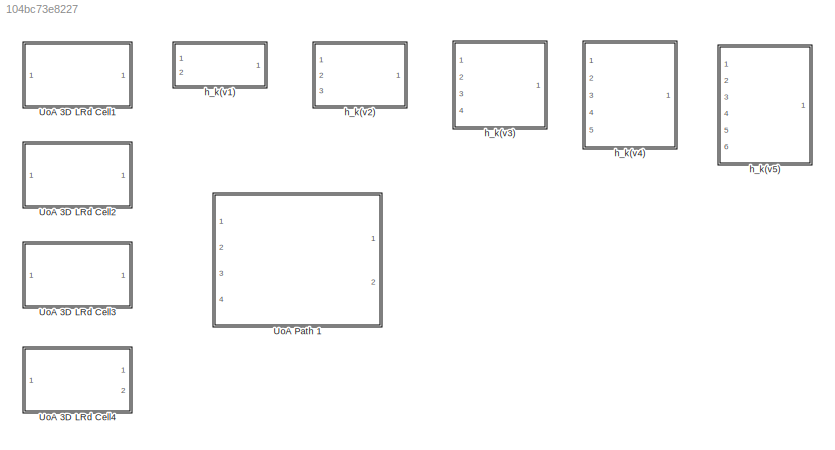
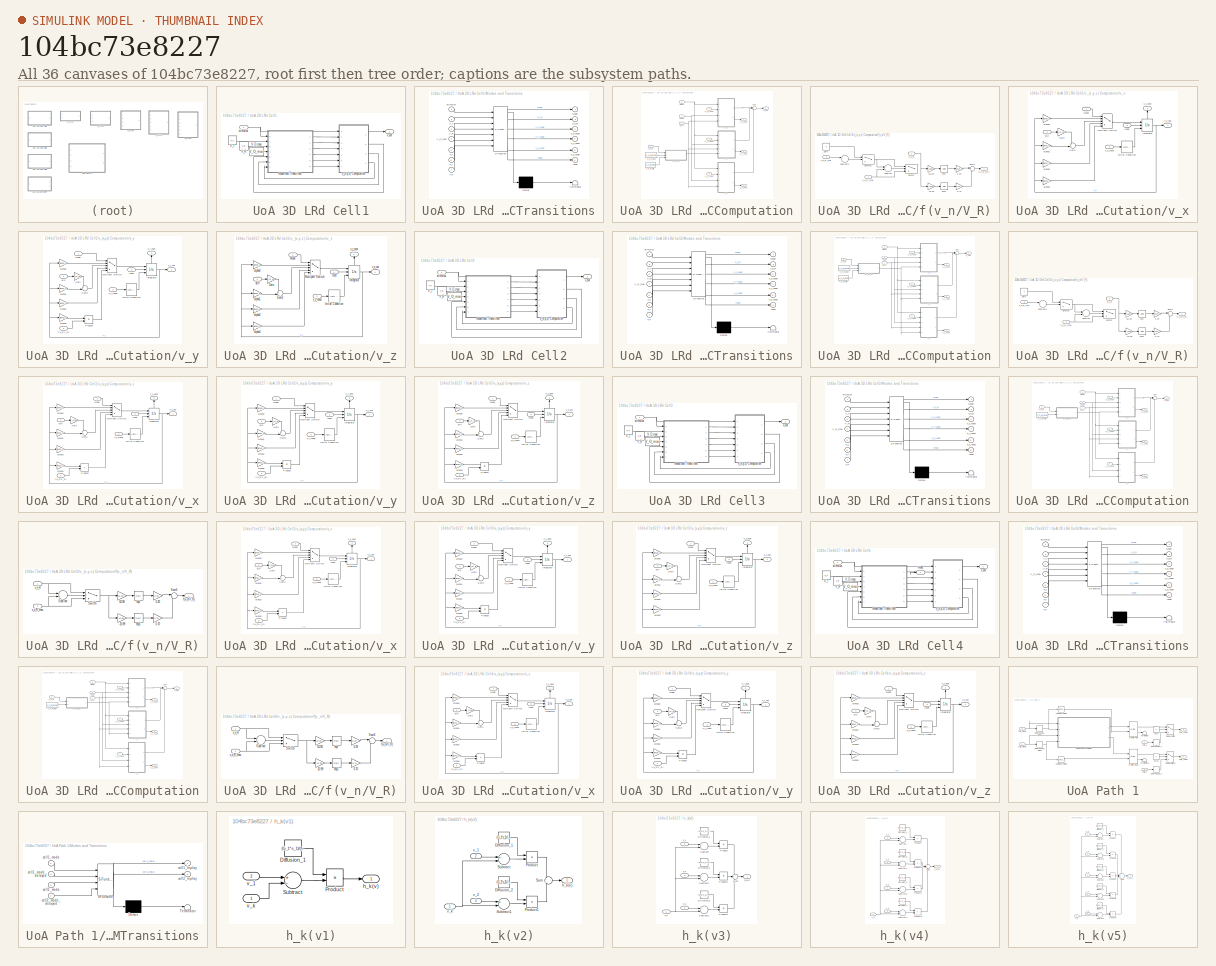
[diagram: thumbnail index - all 36 canvases of the model, root first then tree order]
MODEL slx_104bc73e8227
KIND library
BLOCK [SubSystem] UoA 3D LRd Cell1
  Ports = [1, 1]
  RequestExecContextInheritance = off
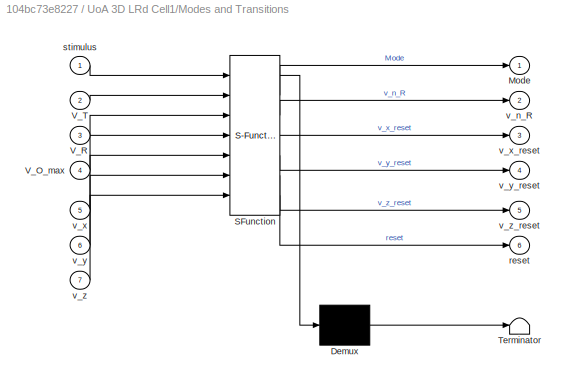
BLOCK [SubSystem] UoA 3D LRd Cell1/Modes and Transitions
  ErrorFcn = Stateflow.Translate.translate
  PermitHierarchicalResolution = ExplicitOnly
  Ports = [7, 6]
  RequestExecContextInheritance = off
  SFBlockType = Chart
  TreatAsAtomicUnit = on
BLOCK [Demux] UoA 3D LRd Cell1/Modes and Transitions/ Demux 
  Outputs = 1
  Ports = [1, 1]
BLOCK [S-Function] UoA 3D LRd Cell1/Modes and Transitions/ SFunction 
  EnableBusSupport = on
  FunctionName = sf_sfun
  PortCounts = [7 7]
  Ports = [7, 7]
  Tag = Stateflow S-Function UoA_3D_LRd_2008 1
BLOCK [Terminator] UoA 3D LRd Cell1/Modes and Transitions/ Terminator 
BLOCK [Outport] UoA 3D LRd Cell1/Modes and Transitions/Mode
  IconDisplay = Port number
BLOCK [Inport] UoA 3D LRd Cell1/Modes and Transitions/V_O_max
  IconDisplay = Port number
  Port = 4
BLOCK [Inport] UoA 3D LRd Cell1/Modes and Transitions/V_R
  IconDisplay = Port number
  Port = 3
BLOCK [Inport] UoA 3D LRd Cell1/Modes and Transitions/V_T
  IconDisplay = Port number
  Port = 2
BLOCK [Outport] UoA 3D LRd Cell1/Modes and Transitions/reset
  IconDisplay = Port number
  Port = 6
BLOCK [Inport] UoA 3D LRd Cell1/Modes and Transitions/stimulus
  IconDisplay = Port number
BLOCK [Outport] UoA 3D LRd Cell1/Modes and Transitions/v_n_R
  IconDisplay = Port number
  Port = 2
BLOCK [Inport] UoA 3D LRd Cell1/Modes and Transitions/v_x
  IconDisplay = Port number
  Port = 5
BLOCK [Outport] UoA 3D LRd Cell1/Modes and Transitions/v_x_reset
  IconDisplay = Port number
  Port = 3
BLOCK [Inport] UoA 3D LRd Cell1/Modes and Transitions/v_y
  IconDisplay = Port number
  Port = 6
BLOCK [Outport] UoA 3D LRd Cell1/Modes and Transitions/v_y_reset
  IconDisplay = Port number
  Port = 4
BLOCK [Inport] UoA 3D LRd Cell1/Modes and Transitions/v_z
  IconDisplay = Port number
  Port = 7
BLOCK [Outport] UoA 3D LRd Cell1/Modes and Transitions/v_z_reset
  IconDisplay = Port number
  Port = 5
BLOCK [Constant] UoA 3D LRd Cell1/V_O_max
  Value = V_O_max
BLOCK [Constant] UoA 3D LRd Cell1/V_R
  Value = V_R
BLOCK [Constant] UoA 3D LRd Cell1/V_T
  Value = V_T
BLOCK [Inport] UoA 3D LRd Cell1/stimulus
  IconDisplay = Port number
BLOCK [SubSystem] UoA 3D LRd Cell1/v_(x,y,z) Computation
  Ports = [7, 4]
  RequestExecContextInheritance = off
BLOCK [Inport] UoA 3D LRd Cell1/v_(x,y,z) Computation/Mode
  IconDisplay = Port number
  Port = 2
BLOCK [Sum] UoA 3D LRd Cell1/v_(x,y,z) Computation/Sum
  IconShape = round
  InputSameDT = off
  Inputs = |+-+
  OutDataTypeStr = Inherit: Inherit via internal rule
  Ports = [3, 1]
  SaturateOnIntegerOverflow = off
BLOCK [SubSystem] UoA 3D LRd Cell1/v_(x,y,z) Computation/f(v_n//V_R)
  Ports = [3, 1]
  RequestExecContextInheritance = off
BLOCK [Gain] UoA 3D LRd Cell1/v_(x,y,z) Computation/f(v_n//V_R)/-10.99
  Gain = -10.99
  OutDataTypeStr = Inherit: Inherit via internal rule
  ParamDataTypeStr = Inherit: Inherit via internal rule
  SaturateOnIntegerOverflow = off
BLOCK [Gain] UoA 3D LRd Cell1/v_(x,y,z) Computation/f(v_n//V_R)/0.29
  Gain = 0.29
  OutDataTypeStr = Inherit: Inherit via internal rule
  ParamDataTypeStr = Inherit: Inherit via internal rule
  SaturateOnIntegerOverflow = off
BLOCK [Gain] UoA 3D LRd Cell1/v_(x,y,z) Computation/f(v_n//V_R)/0.70
  Gain = 0.70
  OutDataTypeStr = Inherit: Inherit via internal rule
  ParamDataTypeStr = Inherit: Inherit via internal rule
  SaturateOnIntegerOverflow = off
BLOCK [Gain] UoA 3D LRd Cell1/v_(x,y,z) Computation/f(v_n//V_R)/62.89
  Gain = 62.89
  OutDataTypeStr = Inherit: Inherit via internal rule
  ParamDataTypeStr = Inherit: Inherit via internal rule
  SaturateOnIntegerOverflow = off
BLOCK [Sum] UoA 3D LRd Cell1/v_(x,y,z) Computation/f(v_n//V_R)/Subtract
  InputSameDT = off
  Inputs = -+
  OutDataTypeStr = Inherit: Inherit via internal rule
  Ports = [2, 1]
  SaturateOnIntegerOverflow = off
BLOCK [Sum] UoA 3D LRd Cell1/v_(x,y,z) Computation/f(v_n//V_R)/Subtract1
  InputSameDT = off
  Inputs = +-
  OutDataTypeStr = Inherit: Inherit via internal rule
  Ports = [2, 1]
  SaturateOnIntegerOverflow = off
BLOCK [Sum] UoA 3D LRd Cell1/v_(x,y,z) Computation/f(v_n//V_R)/Sum3
  IconShape = round
  InputSameDT = off
  Inputs = |++
  OutDataTypeStr = Inherit: Inherit via internal rule
  Ports = [2, 1]
  SaturateOnIntegerOverflow = off
BLOCK [Switch] UoA 3D LRd Cell1/v_(x,y,z) Computation/f(v_n//V_R)/Switch
  Criteria = u2 > Threshold
  InputSameDT = off
  SaturateOnIntegerOverflow = off
BLOCK [Switch] UoA 3D LRd Cell1/v_(x,y,z) Computation/f(v_n//V_R)/Switch1
  Criteria = u2 > Threshold
  InputSameDT = off
  SaturateOnIntegerOverflow = off
BLOCK [Constant] UoA 3D LRd Cell1/v_(x,y,z) Computation/f(v_n//V_R)/Zero
  Value = 0
BLOCK [Math] UoA 3D LRd Cell1/v_(x,y,z) Computation/f(v_n//V_R)/exp
  Ports = [1, 1]
BLOCK [Math] UoA 3D LRd Cell1/v_(x,y,z) Computation/f(v_n//V_R)/exp1
  Ports = [1, 1]
BLOCK [Outport] UoA 3D LRd Cell1/v_(x,y,z) Computation/f(v_n//V_R)/f(v_n//V_R)
  IconDisplay = Port number
BLOCK [Inport] UoA 3D LRd Cell1/v_(x,y,z) Computation/f(v_n//V_R)/v_n_R
  IconDisplay = Port number
BLOCK [Inport] UoA 3D LRd Cell1/v_(x,y,z) Computation/f(v_n//V_R)/v_n_R_max
  IconDisplay = Port number
  Port = 2
BLOCK [Inport] UoA 3D LRd Cell1/v_(x,y,z) Computation/f(v_n//V_R)/v_n_R_min
  IconDisplay = Port number
  Port = 3
BLOCK [Inport] UoA 3D LRd Cell1/v_(x,y,z) Computation/g(v)
  IconDisplay = Port number
BLOCK [Inport] UoA 3D LRd Cell1/v_(x,y,z) Computation/reset
  IconDisplay = Port number
  Port = 7
BLOCK [Inport] UoA 3D LRd Cell1/v_(x,y,z) Computation/v_n_R
  IconDisplay = Port number
  Port = 3
BLOCK [Constant] UoA 3D LRd Cell1/v_(x,y,z) Computation/v_n_R_max
  Value = v_n_R_max
BLOCK [Constant] UoA 3D LRd Cell1/v_(x,y,z) Computation/v_n_R_min
  Value = v_n_R_min
BLOCK [Outport] UoA 3D LRd Cell1/v_(x,y,z) Computation/v_out
  IconDisplay = Port number
BLOCK [SubSystem] UoA 3D LRd Cell1/v_(x,y,z) Computation/v_x
  Ports = [4, 2]
  RequestExecContextInheritance = off
BLOCK [Gain] UoA 3D LRd Cell1/v_(x,y,z) Computation/v_x/Gain
  Gain = i_st_gx
  OutDataTypeStr = Inherit: Inherit via internal rule
  ParamDataTypeStr = Inherit: Inherit via internal rule
  SaturateOnIntegerOverflow = off
BLOCK [InitialCondition] UoA 3D LRd Cell1/v_(x,y,z) Computation/v_x/Initial Condition
  Value = 0
BLOCK [Integrator] UoA 3D LRd Cell1/v_(x,y,z) Computation/v_x/Integrator
  ExternalReset = either
  InitialConditionSource = external
  Ports = [3, 1, 0, 0, 1]
  ShowStatePort = on
BLOCK [Inport] UoA 3D LRd Cell1/v_(x,y,z) Computation/v_x/Mode
  IconDisplay = Port number
BLOCK [MultiPortSwitch] UoA 3D LRd Cell1/v_(x,y,z) Computation/v_x/Multiport Switch
  InputSameDT = off
  Inputs = 4
  Ports = [5, 1]
  SaturateOnIntegerOverflow = off
BLOCK [Sum] UoA 3D LRd Cell1/v_(x,y,z) Computation/v_x/Sum1
  IconShape = round
  InputSameDT = off
  Inputs = ++|
  OutDataTypeStr = Inherit: Inherit via internal rule
  Ports = [2, 1]
  SaturateOnIntegerOverflow = off
BLOCK [Gain] UoA 3D LRd Cell1/v_(x,y,z) Computation/v_x/alpha0
  Gain = alpha0_x
  OutDataTypeStr = Inherit: Inherit via internal rule
  ParamDataTypeStr = Inherit: Inherit via internal rule
  SaturateOnIntegerOverflow = off
BLOCK [Gain] UoA 3D LRd Cell1/v_(x,y,z) Computation/v_x/alpha1
  Gain = alpha1_x
  OutDataTypeStr = Inherit: Inherit via internal rule
  ParamDataTypeStr = Inherit: Inherit via internal rule
  SaturateOnIntegerOverflow = off
BLOCK [Gain] UoA 3D LRd Cell1/v_(x,y,z) Computation/v_x/alpha2
  Gain = alpha2_x
  OutDataTypeStr = Inherit: Inherit via internal rule
  ParamDataTypeStr = Inherit: Inherit via internal rule
  SaturateOnIntegerOverflow = off
BLOCK [Gain] UoA 3D LRd Cell1/v_(x,y,z) Computation/v_x/alpha3
  Gain = alpha3_x
  OutDataTypeStr = Inherit: Inherit via internal rule
  ParamDataTypeStr = Inherit: Inherit via internal rule
  SaturateOnIntegerOverflow = off
BLOCK [Inport] UoA 3D LRd Cell1/v_(x,y,z) Computation/v_x/g(v)
  IconDisplay = Port number
  Port = 4
BLOCK [Inport] UoA 3D LRd Cell1/v_(x,y,z) Computation/v_x/reset
  IconDisplay = Port number
  Port = 3
BLOCK [Outport] UoA 3D LRd Cell1/v_(x,y,z) Computation/v_x/v_x_next
  IconDisplay = Port number
  Port = 2
BLOCK [Outport] UoA 3D LRd Cell1/v_(x,y,z) Computation/v_x/v_x_out
  IconDisplay = Port number
BLOCK [Inport] UoA 3D LRd Cell1/v_(x,y,z) Computation/v_x/v_x_reset
  IconDisplay = Port number
  Port = 2
BLOCK [Outport] UoA 3D LRd Cell1/v_(x,y,z) Computation/v_x_next
  IconDisplay = Port number
  Port = 2
BLOCK [Inport] UoA 3D LRd Cell1/v_(x,y,z) Computation/v_x_reset
  IconDisplay = Port number
  Port = 4
BLOCK [SubSystem] UoA 3D LRd Cell1/v_(x,y,z) Computation/v_y
  Ports = [5, 2]
  RequestExecContextInheritance = off
BLOCK [Gain] UoA 3D LRd Cell1/v_(x,y,z) Computation/v_y/Gain
  Gain = i_st_gy
  OutDataTypeStr = Inherit: Inherit via internal rule
  ParamDataTypeStr = Inherit: Inherit via internal rule
  SaturateOnIntegerOverflow = off
BLOCK [InitialCondition] UoA 3D LRd Cell1/v_(x,y,z) Computation/v_y/Initial Condition
  Value = 0
BLOCK [Integrator] UoA 3D LRd Cell1/v_(x,y,z) Computation/v_y/Integrator
  ExternalReset = either
  InitialConditionSource = external
  Ports = [3, 1, 0, 0, 1]
  ShowStatePort = on
BLOCK [Inport] UoA 3D LRd Cell1/v_(x,y,z) Computation/v_y/Mode
  IconDisplay = Port number
BLOCK [MultiPortSwitch] UoA 3D LRd Cell1/v_(x,y,z) Computation/v_y/Multiport Switch
  InputSameDT = off
  Inputs = 4
  Ports = [5, 1]
  SaturateOnIntegerOverflow = off
BLOCK [Product] UoA 3D LRd Cell1/v_(x,y,z) Computation/v_y/Product
  InputSameDT = off
  OutDataTypeStr = Inherit: Inherit via internal rule
  Ports = [2, 1]
  SaturateOnIntegerOverflow = off
BLOCK [Sum] UoA 3D LRd Cell1/v_(x,y,z) Computation/v_y/Sum2
  IconShape = round
  InputSameDT = off
  Inputs = ++|
  OutDataTypeStr = Inherit: Inherit via internal rule
  Ports = [2, 1]
  SaturateOnIntegerOverflow = off
BLOCK [Gain] UoA 3D LRd Cell1/v_(x,y,z) Computation/v_y/alpha0
  Gain = alpha0_y
  OutDataTypeStr = Inherit: Inherit via internal rule
  ParamDataTypeStr = Inherit: Inherit via internal rule
  SaturateOnIntegerOverflow = off
BLOCK [Gain] UoA 3D LRd Cell1/v_(x,y,z) Computation/v_y/alpha1
  Gain = alpha1_y
  OutDataTypeStr = Inherit: Inherit via internal rule
  ParamDataTypeStr = Inherit: Inherit via internal rule
  SaturateOnIntegerOverflow = off
BLOCK [Gain] UoA 3D LRd Cell1/v_(x,y,z) Computation/v_y/alpha2
  Gain = alpha2_y
  OutDataTypeStr = Inherit: Inherit via internal rule
  ParamDataTypeStr = Inherit: Inherit via internal rule
  SaturateOnIntegerOverflow = off
BLOCK [Gain] UoA 3D LRd Cell1/v_(x,y,z) Computation/v_y/alpha3
  Gain = alpha3_y
  OutDataTypeStr = Inherit: Inherit via internal rule
  ParamDataTypeStr = Inherit: Inherit via internal rule
  SaturateOnIntegerOverflow = off
BLOCK [Inport] UoA 3D LRd Cell1/v_(x,y,z) Computation/v_y/f(v_n//V_R)
  IconDisplay = Port number
  Port = 5
BLOCK [Inport] UoA 3D LRd Cell1/v_(x,y,z) Computation/v_y/g(v)
  IconDisplay = Port number
  Port = 4
BLOCK [Inport] UoA 3D LRd Cell1/v_(x,y,z) Computation/v_y/reset
  IconDisplay = Port number
  Port = 3
BLOCK [Outport] UoA 3D LRd Cell1/v_(x,y,z) Computation/v_y/v_y_next
  IconDisplay = Port number
  Port = 2
BLOCK [Outport] UoA 3D LRd Cell1/v_(x,y,z) Computation/v_y/v_y_out
  IconDisplay = Port number
BLOCK [Inport] UoA 3D LRd Cell1/v_(x,y,z) Computation/v_y/v_y_reset
  IconDisplay = Port number
  Port = 2
BLOCK [Outport] UoA 3D LRd Cell1/v_(x,y,z) Computation/v_y_next
  IconDisplay = Port number
  Port = 3
BLOCK [Inport] UoA 3D LRd Cell1/v_(x,y,z) Computation/v_y_reset
  IconDisplay = Port number
  Port = 5
BLOCK [SubSystem] UoA 3D LRd Cell1/v_(x,y,z) Computation/v_z
  Ports = [4, 2]
  RequestExecContextInheritance = off
BLOCK [Gain] UoA 3D LRd Cell1/v_(x,y,z) Computation/v_z/Gain
  Gain = i_st_gz
  OutDataTypeStr = Inherit: Inherit via internal rule
  ParamDataTypeStr = Inherit: Inherit via internal rule
  SaturateOnIntegerOverflow = off
BLOCK [InitialCondition] UoA 3D LRd Cell1/v_(x,y,z) Computation/v_z/Initial Condition
  Value = 0
BLOCK [Integrator] UoA 3D LRd Cell1/v_(x,y,z) Computation/v_z/Integrator
  ExternalReset = either
  InitialConditionSource = external
  Ports = [3, 1, 0, 0, 1]
  ShowStatePort = on
BLOCK [Inport] UoA 3D LRd Cell1/v_(x,y,z) Computation/v_z/Mode
  IconDisplay = Port number
BLOCK [MultiPortSwitch] UoA 3D LRd Cell1/v_(x,y,z) Computation/v_z/Multiport Switch
  InputSameDT = off
  Inputs = 4
  Ports = [5, 1]
  SaturateOnIntegerOverflow = off
BLOCK [Sum] UoA 3D LRd Cell1/v_(x,y,z) Computation/v_z/Sum2
  IconShape = round
  InputSameDT = off
  Inputs = ++|
  OutDataTypeStr = Inherit: Inherit via internal rule
  Ports = [2, 1]
  SaturateOnIntegerOverflow = off
BLOCK [Gain] UoA 3D LRd Cell1/v_(x,y,z) Computation/v_z/alpha0
  Gain = alpha0_z
  OutDataTypeStr = Inherit: Inherit via internal rule
  ParamDataTypeStr = Inherit: Inherit via internal rule
  SaturateOnIntegerOverflow = off
BLOCK [Gain] UoA 3D LRd Cell1/v_(x,y,z) Computation/v_z/alpha1
  Gain = alpha1_z
  OutDataTypeStr = Inherit: Inherit via internal rule
  ParamDataTypeStr = Inherit: Inherit via internal rule
  SaturateOnIntegerOverflow = off
BLOCK [Gain] UoA 3D LRd Cell1/v_(x,y,z) Computation/v_z/alpha2
  Gain = alpha2_z
  OutDataTypeStr = Inherit: Inherit via internal rule
  ParamDataTypeStr = Inherit: Inherit via internal rule
  SaturateOnIntegerOverflow = off
BLOCK [Gain] UoA 3D LRd Cell1/v_(x,y,z) Computation/v_z/alpha3
  Gain = alpha3_z
  OutDataTypeStr = Inherit: Inherit via internal rule
  ParamDataTypeStr = Inherit: Inherit via internal rule
  SaturateOnIntegerOverflow = off
BLOCK [Inport] UoA 3D LRd Cell1/v_(x,y,z) Computation/v_z/g(v)
  IconDisplay = Port number
  Port = 4
BLOCK [Inport] UoA 3D LRd Cell1/v_(x,y,z) Computation/v_z/reset
  IconDisplay = Port number
  Port = 3
BLOCK [Outport] UoA 3D LRd Cell1/v_(x,y,z) Computation/v_z/v_z_next
  IconDisplay = Port number
  Port = 2
BLOCK [Outport] UoA 3D LRd Cell1/v_(x,y,z) Computation/v_z/v_z_out
  IconDisplay = Port number
BLOCK [Inport] UoA 3D LRd Cell1/v_(x,y,z) Computation/v_z/v_z_reset
  IconDisplay = Port number
  Port = 2
BLOCK [Outport] UoA 3D LRd Cell1/v_(x,y,z) Computation/v_z_next
  IconDisplay = Port number
  Port = 4
BLOCK [Inport] UoA 3D LRd Cell1/v_(x,y,z) Computation/v_z_reset
  IconDisplay = Port number
  Port = 6
BLOCK [Outport] UoA 3D LRd Cell1/v_out
  IconDisplay = Port number
BLOCK [SubSystem] UoA 3D LRd Cell2
  Ports = [1, 1]
  RequestExecContextInheritance = off
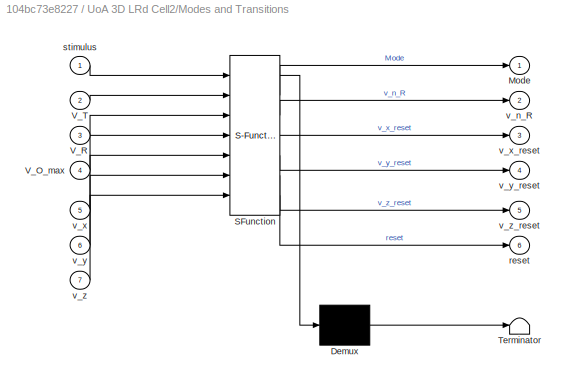
BLOCK [SubSystem] UoA 3D LRd Cell2/Modes and Transitions
  ErrorFcn = Stateflow.Translate.translate
  PermitHierarchicalResolution = ExplicitOnly
  Ports = [7, 6]
  RequestExecContextInheritance = off
  SFBlockType = Chart
  TreatAsAtomicUnit = on
BLOCK [Demux] UoA 3D LRd Cell2/Modes and Transitions/ Demux 
  Outputs = 1
  Ports = [1, 1]
BLOCK [S-Function] UoA 3D LRd Cell2/Modes and Transitions/ SFunction 
  EnableBusSupport = on
  FunctionName = sf_sfun
  PortCounts = [7 7]
  Ports = [7, 7]
  Tag = Stateflow S-Function UoA_3D_LRd_2008 2
BLOCK [Terminator] UoA 3D LRd Cell2/Modes and Transitions/ Terminator 
BLOCK [Outport] UoA 3D LRd Cell2/Modes and Transitions/Mode
  IconDisplay = Port number
BLOCK [Inport] UoA 3D LRd Cell2/Modes and Transitions/V_O_max
  IconDisplay = Port number
  Port = 4
BLOCK [Inport] UoA 3D LRd Cell2/Modes and Transitions/V_R
  IconDisplay = Port number
  Port = 3
BLOCK [Inport] UoA 3D LRd Cell2/Modes and Transitions/V_T
  IconDisplay = Port number
  Port = 2
BLOCK [Outport] UoA 3D LRd Cell2/Modes and Transitions/reset
  IconDisplay = Port number
  Port = 6
BLOCK [Inport] UoA 3D LRd Cell2/Modes and Transitions/stimulus
  IconDisplay = Port number
BLOCK [Outport] UoA 3D LRd Cell2/Modes and Transitions/v_n_R
  IconDisplay = Port number
  Port = 2
BLOCK [Inport] UoA 3D LRd Cell2/Modes and Transitions/v_x
  IconDisplay = Port number
  Port = 5
BLOCK [Outport] UoA 3D LRd Cell2/Modes and Transitions/v_x_reset
  IconDisplay = Port number
  Port = 3
BLOCK [Inport] UoA 3D LRd Cell2/Modes and Transitions/v_y
  IconDisplay = Port number
  Port = 6
BLOCK [Outport] UoA 3D LRd Cell2/Modes and Transitions/v_y_reset
  IconDisplay = Port number
  Port = 4
BLOCK [Inport] UoA 3D LRd Cell2/Modes and Transitions/v_z
  IconDisplay = Port number
  Port = 7
BLOCK [Outport] UoA 3D LRd Cell2/Modes and Transitions/v_z_reset
  IconDisplay = Port number
  Port = 5
BLOCK [Constant] UoA 3D LRd Cell2/V_O_max
  Value = V_O_max
BLOCK [Constant] UoA 3D LRd Cell2/V_R
  Value = V_R
BLOCK [Constant] UoA 3D LRd Cell2/V_T
  Value = V_T
BLOCK [Inport] UoA 3D LRd Cell2/stimulus
  IconDisplay = Port number
BLOCK [SubSystem] UoA 3D LRd Cell2/v_(x,y,z) Computation
  Ports = [7, 4]
  RequestExecContextInheritance = off
BLOCK [Inport] UoA 3D LRd Cell2/v_(x,y,z) Computation/Mode
  IconDisplay = Port number
  Port = 2
BLOCK [Sum] UoA 3D LRd Cell2/v_(x,y,z) Computation/Sum
  IconShape = round
  InputSameDT = off
  Inputs = |+-+
  OutDataTypeStr = Inherit: Inherit via internal rule
  Ports = [3, 1]
  SaturateOnIntegerOverflow = off
BLOCK [SubSystem] UoA 3D LRd Cell2/v_(x,y,z) Computation/f(v_n//V_R)
  Ports = [3, 1]
  RequestExecContextInheritance = off
BLOCK [Gain] UoA 3D LRd Cell2/v_(x,y,z) Computation/f(v_n//V_R)/-10.99
  Gain = -10.99
  OutDataTypeStr = Inherit: Inherit via internal rule
  ParamDataTypeStr = Inherit: Inherit via internal rule
  SaturateOnIntegerOverflow = off
BLOCK [Gain] UoA 3D LRd Cell2/v_(x,y,z) Computation/f(v_n//V_R)/0.29
  Gain = 0.29
  OutDataTypeStr = Inherit: Inherit via internal rule
  ParamDataTypeStr = Inherit: Inherit via internal rule
  SaturateOnIntegerOverflow = off
BLOCK [Gain] UoA 3D LRd Cell2/v_(x,y,z) Computation/f(v_n//V_R)/0.70
  Gain = 0.70
  OutDataTypeStr = Inherit: Inherit via internal rule
  ParamDataTypeStr = Inherit: Inherit via internal rule
  SaturateOnIntegerOverflow = off
BLOCK [Gain] UoA 3D LRd Cell2/v_(x,y,z) Computation/f(v_n//V_R)/62.89
  Gain = 62.89
  OutDataTypeStr = Inherit: Inherit via internal rule
  ParamDataTypeStr = Inherit: Inherit via internal rule
  SaturateOnIntegerOverflow = off
BLOCK [Sum] UoA 3D LRd Cell2/v_(x,y,z) Computation/f(v_n//V_R)/Subtract
  InputSameDT = off
  Inputs = -+
  OutDataTypeStr = Inherit: Inherit via internal rule
  Ports = [2, 1]
  SaturateOnIntegerOverflow = off
BLOCK [Sum] UoA 3D LRd Cell2/v_(x,y,z) Computation/f(v_n//V_R)/Subtract1
  InputSameDT = off
  Inputs = +-
  OutDataTypeStr = Inherit: Inherit via internal rule
  Ports = [2, 1]
  SaturateOnIntegerOverflow = off
BLOCK [Sum] UoA 3D LRd Cell2/v_(x,y,z) Computation/f(v_n//V_R)/Sum3
  IconShape = round
  InputSameDT = off
  Inputs = |++
  OutDataTypeStr = Inherit: Inherit via internal rule
  Ports = [2, 1]
  SaturateOnIntegerOverflow = off
BLOCK [Switch] UoA 3D LRd Cell2/v_(x,y,z) Computation/f(v_n//V_R)/Switch
  Criteria = u2 > Threshold
  InputSameDT = off
  SaturateOnIntegerOverflow = off
BLOCK [Switch] UoA 3D LRd Cell2/v_(x,y,z) Computation/f(v_n//V_R)/Switch1
  Criteria = u2 > Threshold
  InputSameDT = off
  SaturateOnIntegerOverflow = off
BLOCK [Constant] UoA 3D LRd Cell2/v_(x,y,z) Computation/f(v_n//V_R)/Zero
  Value = 0
BLOCK [Math] UoA 3D LRd Cell2/v_(x,y,z) Computation/f(v_n//V_R)/exp
  Ports = [1, 1]
BLOCK [Math] UoA 3D LRd Cell2/v_(x,y,z) Computation/f(v_n//V_R)/exp1
  Ports = [1, 1]
BLOCK [Outport] UoA 3D LRd Cell2/v_(x,y,z) Computation/f(v_n//V_R)/f(v_n//V_R)
  IconDisplay = Port number
BLOCK [Inport] UoA 3D LRd Cell2/v_(x,y,z) Computation/f(v_n//V_R)/v_n_R
  IconDisplay = Port number
BLOCK [Inport] UoA 3D LRd Cell2/v_(x,y,z) Computation/f(v_n//V_R)/v_n_R_max
  IconDisplay = Port number
  Port = 2
BLOCK [Inport] UoA 3D LRd Cell2/v_(x,y,z) Computation/f(v_n//V_R)/v_n_R_min
  IconDisplay = Port number
  Port = 3
BLOCK [Inport] UoA 3D LRd Cell2/v_(x,y,z) Computation/g(v)
  IconDisplay = Port number
BLOCK [Inport] UoA 3D LRd Cell2/v_(x,y,z) Computation/reset
  IconDisplay = Port number
  Port = 7
BLOCK [Inport] UoA 3D LRd Cell2/v_(x,y,z) Computation/v_n_R
  IconDisplay = Port number
  Port = 3
BLOCK [Constant] UoA 3D LRd Cell2/v_(x,y,z) Computation/v_n_R_max
  Value = v_n_R_max
BLOCK [Constant] UoA 3D LRd Cell2/v_(x,y,z) Computation/v_n_R_min
  Value = v_n_R_min
BLOCK [Outport] UoA 3D LRd Cell2/v_(x,y,z) Computation/v_out
  IconDisplay = Port number
BLOCK [SubSystem] UoA 3D LRd Cell2/v_(x,y,z) Computation/v_x
  Ports = [5, 2]
  RequestExecContextInheritance = off
BLOCK [Gain] UoA 3D LRd Cell2/v_(x,y,z) Computation/v_x/Gain
  Gain = i_st_gx
  OutDataTypeStr = Inherit: Inherit via internal rule
  ParamDataTypeStr = Inherit: Inherit via internal rule
  SaturateOnIntegerOverflow = off
BLOCK [InitialCondition] UoA 3D LRd Cell2/v_(x,y,z) Computation/v_x/Initial Condition
  Value = 0
BLOCK [Integrator] UoA 3D LRd Cell2/v_(x,y,z) Computation/v_x/Integrator
  ExternalReset = either
  InitialConditionSource = external
  Ports = [3, 1, 0, 0, 1]
  ShowStatePort = on
BLOCK [Inport] UoA 3D LRd Cell2/v_(x,y,z) Computation/v_x/Mode
  IconDisplay = Port number
BLOCK [MultiPortSwitch] UoA 3D LRd Cell2/v_(x,y,z) Computation/v_x/Multiport Switch
  InputSameDT = off
  Inputs = 4
  Ports = [5, 1]
  SaturateOnIntegerOverflow = off
BLOCK [Product] UoA 3D LRd Cell2/v_(x,y,z) Computation/v_x/Product
  InputSameDT = off
  OutDataTypeStr = Inherit: Inherit via internal rule
  Ports = [2, 1]
  SaturateOnIntegerOverflow = off
BLOCK [Sum] UoA 3D LRd Cell2/v_(x,y,z) Computation/v_x/Sum1
  IconShape = round
  InputSameDT = off
  Inputs = ++|
  OutDataTypeStr = Inherit: Inherit via internal rule
  Ports = [2, 1]
  SaturateOnIntegerOverflow = off
BLOCK [Gain] UoA 3D LRd Cell2/v_(x,y,z) Computation/v_x/alpha0
  Gain = alpha0_x
  OutDataTypeStr = Inherit: Inherit via internal rule
  ParamDataTypeStr = Inherit: Inherit via internal rule
  SaturateOnIntegerOverflow = off
BLOCK [Gain] UoA 3D LRd Cell2/v_(x,y,z) Computation/v_x/alpha1
  Gain = alpha1_x
  OutDataTypeStr = Inherit: Inherit via internal rule
  ParamDataTypeStr = Inherit: Inherit via internal rule
  SaturateOnIntegerOverflow = off
BLOCK [Gain] UoA 3D LRd Cell2/v_(x,y,z) Computation/v_x/alpha2
  Gain = alpha2_x
  OutDataTypeStr = Inherit: Inherit via internal rule
  ParamDataTypeStr = Inherit: Inherit via internal rule
  SaturateOnIntegerOverflow = off
BLOCK [Gain] UoA 3D LRd Cell2/v_(x,y,z) Computation/v_x/alpha3
  Gain = alpha3_x
  OutDataTypeStr = Inherit: Inherit via internal rule
  ParamDataTypeStr = Inherit: Inherit via internal rule
  SaturateOnIntegerOverflow = off
BLOCK [Inport] UoA 3D LRd Cell2/v_(x,y,z) Computation/v_x/f(v_n//V_R)
  IconDisplay = Port number
  Port = 5
BLOCK [Inport] UoA 3D LRd Cell2/v_(x,y,z) Computation/v_x/g(v)
  IconDisplay = Port number
  Port = 4
BLOCK [Inport] UoA 3D LRd Cell2/v_(x,y,z) Computation/v_x/reset
  IconDisplay = Port number
  Port = 3
BLOCK [Outport] UoA 3D LRd Cell2/v_(x,y,z) Computation/v_x/v_x_next
  IconDisplay = Port number
  Port = 2
BLOCK [Outport] UoA 3D LRd Cell2/v_(x,y,z) Computation/v_x/v_x_out
  IconDisplay = Port number
BLOCK [Inport] UoA 3D LRd Cell2/v_(x,y,z) Computation/v_x/v_x_reset
  IconDisplay = Port number
  Port = 2
BLOCK [Outport] UoA 3D LRd Cell2/v_(x,y,z) Computation/v_x_next
  IconDisplay = Port number
  Port = 2
BLOCK [Inport] UoA 3D LRd Cell2/v_(x,y,z) Computation/v_x_reset
  IconDisplay = Port number
  Port = 4
BLOCK [SubSystem] UoA 3D LRd Cell2/v_(x,y,z) Computation/v_y
  Ports = [5, 2]
  RequestExecContextInheritance = off
BLOCK [Gain] UoA 3D LRd Cell2/v_(x,y,z) Computation/v_y/Gain
  Gain = i_st_gy
  OutDataTypeStr = Inherit: Inherit via internal rule
  ParamDataTypeStr = Inherit: Inherit via internal rule
  SaturateOnIntegerOverflow = off
BLOCK [InitialCondition] UoA 3D LRd Cell2/v_(x,y,z) Computation/v_y/Initial Condition
  Value = 0
BLOCK [Integrator] UoA 3D LRd Cell2/v_(x,y,z) Computation/v_y/Integrator
  ExternalReset = either
  InitialConditionSource = external
  Ports = [3, 1, 0, 0, 1]
  ShowStatePort = on
BLOCK [Inport] UoA 3D LRd Cell2/v_(x,y,z) Computation/v_y/Mode
  IconDisplay = Port number
BLOCK [MultiPortSwitch] UoA 3D LRd Cell2/v_(x,y,z) Computation/v_y/Multiport Switch
  InputSameDT = off
  Inputs = 4
  Ports = [5, 1]
  SaturateOnIntegerOverflow = off
BLOCK [Product] UoA 3D LRd Cell2/v_(x,y,z) Computation/v_y/Product
  InputSameDT = off
  OutDataTypeStr = Inherit: Inherit via internal rule
  Ports = [2, 1]
  SaturateOnIntegerOverflow = off
BLOCK [Sum] UoA 3D LRd Cell2/v_(x,y,z) Computation/v_y/Sum2
  IconShape = round
  InputSameDT = off
  Inputs = ++|
  OutDataTypeStr = Inherit: Inherit via internal rule
  Ports = [2, 1]
  SaturateOnIntegerOverflow = off
BLOCK [Gain] UoA 3D LRd Cell2/v_(x,y,z) Computation/v_y/alpha0
  Gain = alpha0_y
  OutDataTypeStr = Inherit: Inherit via internal rule
  ParamDataTypeStr = Inherit: Inherit via internal rule
  SaturateOnIntegerOverflow = off
BLOCK [Gain] UoA 3D LRd Cell2/v_(x,y,z) Computation/v_y/alpha1
  Gain = alpha1_y
  OutDataTypeStr = Inherit: Inherit via internal rule
  ParamDataTypeStr = Inherit: Inherit via internal rule
  SaturateOnIntegerOverflow = off
BLOCK [Gain] UoA 3D LRd Cell2/v_(x,y,z) Computation/v_y/alpha2
  Gain = alpha2_y
  OutDataTypeStr = Inherit: Inherit via internal rule
  ParamDataTypeStr = Inherit: Inherit via internal rule
  SaturateOnIntegerOverflow = off
BLOCK [Gain] UoA 3D LRd Cell2/v_(x,y,z) Computation/v_y/alpha3
  Gain = alpha3_y
  OutDataTypeStr = Inherit: Inherit via internal rule
  ParamDataTypeStr = Inherit: Inherit via internal rule
  SaturateOnIntegerOverflow = off
BLOCK [Inport] UoA 3D LRd Cell2/v_(x,y,z) Computation/v_y/f(v_n//V_R)
  IconDisplay = Port number
  Port = 5
BLOCK [Inport] UoA 3D LRd Cell2/v_(x,y,z) Computation/v_y/g(v)
  IconDisplay = Port number
  Port = 4
BLOCK [Inport] UoA 3D LRd Cell2/v_(x,y,z) Computation/v_y/reset
  IconDisplay = Port number
  Port = 3
BLOCK [Outport] UoA 3D LRd Cell2/v_(x,y,z) Computation/v_y/v_y_next
  IconDisplay = Port number
  Port = 2
BLOCK [Outport] UoA 3D LRd Cell2/v_(x,y,z) Computation/v_y/v_y_out
  IconDisplay = Port number
BLOCK [Inport] UoA 3D LRd Cell2/v_(x,y,z) Computation/v_y/v_y_reset
  IconDisplay = Port number
  Port = 2
BLOCK [Outport] UoA 3D LRd Cell2/v_(x,y,z) Computation/v_y_next
  IconDisplay = Port number
  Port = 3
BLOCK [Inport] UoA 3D LRd Cell2/v_(x,y,z) Computation/v_y_reset
  IconDisplay = Port number
  Port = 5
BLOCK [SubSystem] UoA 3D LRd Cell2/v_(x,y,z) Computation/v_z
  Ports = [5, 2]
  RequestExecContextInheritance = off
BLOCK [Gain] UoA 3D LRd Cell2/v_(x,y,z) Computation/v_z/Gain
  Gain = i_st_gz
  OutDataTypeStr = Inherit: Inherit via internal rule
  ParamDataTypeStr = Inherit: Inherit via internal rule
  SaturateOnIntegerOverflow = off
BLOCK [InitialCondition] UoA 3D LRd Cell2/v_(x,y,z) Computation/v_z/Initial Condition
  Value = 0
BLOCK [Integrator] UoA 3D LRd Cell2/v_(x,y,z) Computation/v_z/Integrator
  ExternalReset = either
  InitialConditionSource = external
  Ports = [3, 1, 0, 0, 1]
  ShowStatePort = on
BLOCK [Inport] UoA 3D LRd Cell2/v_(x,y,z) Computation/v_z/Mode
  IconDisplay = Port number
BLOCK [MultiPortSwitch] UoA 3D LRd Cell2/v_(x,y,z) Computation/v_z/Multiport Switch
  InputSameDT = off
  Inputs = 4
  Ports = [5, 1]
  SaturateOnIntegerOverflow = off
BLOCK [Product] UoA 3D LRd Cell2/v_(x,y,z) Computation/v_z/Product
  InputSameDT = off
  OutDataTypeStr = Inherit: Inherit via internal rule
  Ports = [2, 1]
  SaturateOnIntegerOverflow = off
BLOCK [Sum] UoA 3D LRd Cell2/v_(x,y,z) Computation/v_z/Sum2
  IconShape = round
  InputSameDT = off
  Inputs = ++|
  OutDataTypeStr = Inherit: Inherit via internal rule
  Ports = [2, 1]
  SaturateOnIntegerOverflow = off
BLOCK [Gain] UoA 3D LRd Cell2/v_(x,y,z) Computation/v_z/alpha0
  Gain = alpha0_z
  OutDataTypeStr = Inherit: Inherit via internal rule
  ParamDataTypeStr = Inherit: Inherit via internal rule
  SaturateOnIntegerOverflow = off
BLOCK [Gain] UoA 3D LRd Cell2/v_(x,y,z) Computation/v_z/alpha1
  Gain = alpha1_z
  OutDataTypeStr = Inherit: Inherit via internal rule
  ParamDataTypeStr = Inherit: Inherit via internal rule
  SaturateOnIntegerOverflow = off
BLOCK [Gain] UoA 3D LRd Cell2/v_(x,y,z) Computation/v_z/alpha2
  Gain = alpha2_z
  OutDataTypeStr = Inherit: Inherit via internal rule
  ParamDataTypeStr = Inherit: Inherit via internal rule
  SaturateOnIntegerOverflow = off
BLOCK [Gain] UoA 3D LRd Cell2/v_(x,y,z) Computation/v_z/alpha3
  Gain = alpha3_z
  OutDataTypeStr = Inherit: Inherit via internal rule
  ParamDataTypeStr = Inherit: Inherit via internal rule
  SaturateOnIntegerOverflow = off
BLOCK [Inport] UoA 3D LRd Cell2/v_(x,y,z) Computation/v_z/f(v_n//V_R)
  IconDisplay = Port number
  Port = 5
BLOCK [Inport] UoA 3D LRd Cell2/v_(x,y,z) Computation/v_z/g(v)
  IconDisplay = Port number
  Port = 4
BLOCK [Inport] UoA 3D LRd Cell2/v_(x,y,z) Computation/v_z/reset
  IconDisplay = Port number
  Port = 3
BLOCK [Outport] UoA 3D LRd Cell2/v_(x,y,z) Computation/v_z/v_z_next
  IconDisplay = Port number
  Port = 2
BLOCK [Outport] UoA 3D LRd Cell2/v_(x,y,z) Computation/v_z/v_z_out
  IconDisplay = Port number
BLOCK [Inport] UoA 3D LRd Cell2/v_(x,y,z) Computation/v_z/v_z_reset
  IconDisplay = Port number
  Port = 2
BLOCK [Outport] UoA 3D LRd Cell2/v_(x,y,z) Computation/v_z_next
  IconDisplay = Port number
  Port = 4
BLOCK [Inport] UoA 3D LRd Cell2/v_(x,y,z) Computation/v_z_reset
  IconDisplay = Port number
  Port = 6
BLOCK [Outport] UoA 3D LRd Cell2/v_out
  IconDisplay = Port number
BLOCK [SubSystem] UoA 3D LRd Cell3
  Ports = [1, 1]
  RequestExecContextInheritance = off
BLOCK [SubSystem] UoA 3D LRd Cell3/Modes and Transitions
  ErrorFcn = Stateflow.Translate.translate
  PermitHierarchicalResolution = ExplicitOnly
  Ports = [7, 6]
  RequestExecContextInheritance = off
  SFBlockType = Chart
  TreatAsAtomicUnit = on
BLOCK [Demux] UoA 3D LRd Cell3/Modes and Transitions/ Demux 
  Outputs = 1
  Ports = [1, 1]
BLOCK [S-Function] UoA 3D LRd Cell3/Modes and Transitions/ SFunction 
  EnableBusSupport = off
  FunctionName = sf_sfun
  PortCounts = [7 7]
  Ports = [7, 7]
  Tag = Stateflow S-Function UoA_3D_LRd_2008 3
BLOCK [Terminator] UoA 3D LRd Cell3/Modes and Transitions/ Terminator 
BLOCK [Outport] UoA 3D LRd Cell3/Modes and Transitions/Mode
  IconDisplay = Port number
BLOCK [Inport] UoA 3D LRd Cell3/Modes and Transitions/V_O_max
  IconDisplay = Port number
  Port = 4
BLOCK [Inport] UoA 3D LRd Cell3/Modes and Transitions/V_R
  IconDisplay = Port number
  Port = 3
BLOCK [Inport] UoA 3D LRd Cell3/Modes and Transitions/V_T
  IconDisplay = Port number
  Port = 2
BLOCK [Outport] UoA 3D LRd Cell3/Modes and Transitions/reset
  IconDisplay = Port number
  Port = 6
BLOCK [Inport] UoA 3D LRd Cell3/Modes and Transitions/stimulus
  IconDisplay = Port number
BLOCK [Outport] UoA 3D LRd Cell3/Modes and Transitions/v_n_R
  IconDisplay = Port number
  Port = 2
BLOCK [Inport] UoA 3D LRd Cell3/Modes and Transitions/v_x
  IconDisplay = Port number
  Port = 5
BLOCK [Outport] UoA 3D LRd Cell3/Modes and Transitions/v_x_reset
  IconDisplay = Port number
  Port = 3
BLOCK [Inport] UoA 3D LRd Cell3/Modes and Transitions/v_y
  IconDisplay = Port number
  Port = 6
BLOCK [Outport] UoA 3D LRd Cell3/Modes and Transitions/v_y_reset
  IconDisplay = Port number
  Port = 4
BLOCK [Inport] UoA 3D LRd Cell3/Modes and Transitions/v_z
  IconDisplay = Port number
  Port = 7
BLOCK [Outport] UoA 3D LRd Cell3/Modes and Transitions/v_z_reset
  IconDisplay = Port number
  Port = 5
BLOCK [Constant] UoA 3D LRd Cell3/V_O_max
  Value = V_O_max
BLOCK [Constant] UoA 3D LRd Cell3/V_R
  Value = V_R
BLOCK [Constant] UoA 3D LRd Cell3/V_T
  Value = V_T
BLOCK [Inport] UoA 3D LRd Cell3/stimulus
  IconDisplay = Port number
BLOCK [SubSystem] UoA 3D LRd Cell3/v_(x,y,z) Computation
  Ports = [7, 4]
  RequestExecContextInheritance = off
BLOCK [Inport] UoA 3D LRd Cell3/v_(x,y,z) Computation/Mode
  IconDisplay = Port number
  Port = 2
BLOCK [Sum] UoA 3D LRd Cell3/v_(x,y,z) Computation/Sum
  IconShape = round
  InputSameDT = off
  Inputs = |+-+
  OutDataTypeStr = Inherit: Inherit via internal rule
  Ports = [3, 1]
  SaturateOnIntegerOverflow = off
BLOCK [SubSystem] UoA 3D LRd Cell3/v_(x,y,z) Computation/f(v_n//V_R)
  Ports = [2, 1]
  RequestExecContextInheritance = off
BLOCK [Gain] UoA 3D LRd Cell3/v_(x,y,z) Computation/f(v_n//V_R)/-10.99
  Gain = -10.99
  OutDataTypeStr = Inherit: Inherit via internal rule
  ParamDataTypeStr = Inherit: Inherit via internal rule
  SaturateOnIntegerOverflow = off
BLOCK [Gain] UoA 3D LRd Cell3/v_(x,y,z) Computation/f(v_n//V_R)/0.29
  Gain = 0.29
  OutDataTypeStr = Inherit: Inherit via internal rule
  ParamDataTypeStr = Inherit: Inherit via internal rule
  SaturateOnIntegerOverflow = off
BLOCK [Gain] UoA 3D LRd Cell3/v_(x,y,z) Computation/f(v_n//V_R)/0.70
  Gain = 0.70
  OutDataTypeStr = Inherit: Inherit via internal rule
  ParamDataTypeStr = Inherit: Inherit via internal rule
  SaturateOnIntegerOverflow = off
BLOCK [Gain] UoA 3D LRd Cell3/v_(x,y,z) Computation/f(v_n//V_R)/62.89
  Gain = 62.89
  OutDataTypeStr = Inherit: Inherit via internal rule
  ParamDataTypeStr = Inherit: Inherit via internal rule
  SaturateOnIntegerOverflow = off
BLOCK [Sum] UoA 3D LRd Cell3/v_(x,y,z) Computation/f(v_n//V_R)/Subtract
  InputSameDT = off
  Inputs = -+
  OutDataTypeStr = Inherit: Inherit via internal rule
  Ports = [2, 1]
  SaturateOnIntegerOverflow = off
BLOCK [Sum] UoA 3D LRd Cell3/v_(x,y,z) Computation/f(v_n//V_R)/Sum3
  IconShape = round
  InputSameDT = off
  Inputs = |++
  OutDataTypeStr = Inherit: Inherit via internal rule
  Ports = [2, 1]
  SaturateOnIntegerOverflow = off
BLOCK [Switch] UoA 3D LRd Cell3/v_(x,y,z) Computation/f(v_n//V_R)/Switch
  Criteria = u2 > Threshold
  InputSameDT = off
  SaturateOnIntegerOverflow = off
BLOCK [Math] UoA 3D LRd Cell3/v_(x,y,z) Computation/f(v_n//V_R)/exp
  Ports = [1, 1]
BLOCK [Math] UoA 3D LRd Cell3/v_(x,y,z) Computation/f(v_n//V_R)/exp1
  Ports = [1, 1]
BLOCK [Outport] UoA 3D LRd Cell3/v_(x,y,z) Computation/f(v_n//V_R)/f(v_n//V_R)
  IconDisplay = Port number
BLOCK [Inport] UoA 3D LRd Cell3/v_(x,y,z) Computation/f(v_n//V_R)/v_n_R
  IconDisplay = Port number
BLOCK [Inport] UoA 3D LRd Cell3/v_(x,y,z) Computation/f(v_n//V_R)/v_n_R_max
  IconDisplay = Port number
  Port = 2
BLOCK [Inport] UoA 3D LRd Cell3/v_(x,y,z) Computation/g(v)
  IconDisplay = Port number
BLOCK [Inport] UoA 3D LRd Cell3/v_(x,y,z) Computation/reset
  IconDisplay = Port number
  Port = 7
BLOCK [Inport] UoA 3D LRd Cell3/v_(x,y,z) Computation/v_n_R
  IconDisplay = Port number
  Port = 3
BLOCK [Constant] UoA 3D LRd Cell3/v_(x,y,z) Computation/v_n_R_max
  Value = v_n_R_max
BLOCK [Outport] UoA 3D LRd Cell3/v_(x,y,z) Computation/v_out
  IconDisplay = Port number
BLOCK [SubSystem] UoA 3D LRd Cell3/v_(x,y,z) Computation/v_x
  Ports = [5, 2]
  RequestExecContextInheritance = off
BLOCK [Gain] UoA 3D LRd Cell3/v_(x,y,z) Computation/v_x/Gain
  Gain = i_st_gx
  OutDataTypeStr = Inherit: Inherit via internal rule
  ParamDataTypeStr = Inherit: Inherit via internal rule
  SaturateOnIntegerOverflow = off
BLOCK [InitialCondition] UoA 3D LRd Cell3/v_(x,y,z) Computation/v_x/Initial Condition
  Value = 0
BLOCK [Integrator] UoA 3D LRd Cell3/v_(x,y,z) Computation/v_x/Integrator
  ExternalReset = either
  InitialConditionSource = external
  Ports = [3, 1, 0, 0, 1]
  ShowStatePort = on
BLOCK [Inport] UoA 3D LRd Cell3/v_(x,y,z) Computation/v_x/Mode
  IconDisplay = Port number
BLOCK [MultiPortSwitch] UoA 3D LRd Cell3/v_(x,y,z) Computation/v_x/Multiport Switch
  InputSameDT = off
  Inputs = 4
  Ports = [5, 1]
  SaturateOnIntegerOverflow = off
BLOCK [Product] UoA 3D LRd Cell3/v_(x,y,z) Computation/v_x/Product
  InputSameDT = off
  OutDataTypeStr = Inherit: Inherit via internal rule
  Ports = [2, 1]
  SaturateOnIntegerOverflow = off
BLOCK [Sum] UoA 3D LRd Cell3/v_(x,y,z) Computation/v_x/Sum1
  IconShape = round
  InputSameDT = off
  Inputs = ++|
  OutDataTypeStr = Inherit: Inherit via internal rule
  Ports = [2, 1]
  SaturateOnIntegerOverflow = off
BLOCK [Gain] UoA 3D LRd Cell3/v_(x,y,z) Computation/v_x/alpha0
  Gain = alpha0_x
  OutDataTypeStr = Inherit: Inherit via internal rule
  ParamDataTypeStr = Inherit: Inherit via internal rule
  SaturateOnIntegerOverflow = off
BLOCK [Gain] UoA 3D LRd Cell3/v_(x,y,z) Computation/v_x/alpha1
  Gain = alpha1_x
  OutDataTypeStr = Inherit: Inherit via internal rule
  ParamDataTypeStr = Inherit: Inherit via internal rule
  SaturateOnIntegerOverflow = off
BLOCK [Gain] UoA 3D LRd Cell3/v_(x,y,z) Computation/v_x/alpha2
  Gain = alpha2_x
  OutDataTypeStr = Inherit: Inherit via internal rule
  ParamDataTypeStr = Inherit: Inherit via internal rule
  SaturateOnIntegerOverflow = off
BLOCK [Gain] UoA 3D LRd Cell3/v_(x,y,z) Computation/v_x/alpha3
  Gain = alpha3_x
  OutDataTypeStr = Inherit: Inherit via internal rule
  ParamDataTypeStr = Inherit: Inherit via internal rule
  SaturateOnIntegerOverflow = off
BLOCK [Inport] UoA 3D LRd Cell3/v_(x,y,z) Computation/v_x/f(v_n//V_R)
  IconDisplay = Port number
  Port = 5
BLOCK [Inport] UoA 3D LRd Cell3/v_(x,y,z) Computation/v_x/g(v)
  IconDisplay = Port number
  Port = 4
BLOCK [Inport] UoA 3D LRd Cell3/v_(x,y,z) Computation/v_x/reset
  IconDisplay = Port number
  Port = 3
BLOCK [Outport] UoA 3D LRd Cell3/v_(x,y,z) Computation/v_x/v_x_next
  IconDisplay = Port number
  Port = 2
BLOCK [Outport] UoA 3D LRd Cell3/v_(x,y,z) Computation/v_x/v_x_out
  IconDisplay = Port number
BLOCK [Inport] UoA 3D LRd Cell3/v_(x,y,z) Computation/v_x/v_x_reset
  IconDisplay = Port number
  Port = 2
BLOCK [Outport] UoA 3D LRd Cell3/v_(x,y,z) Computation/v_x_next
  IconDisplay = Port number
  Port = 2
BLOCK [Inport] UoA 3D LRd Cell3/v_(x,y,z) Computation/v_x_reset
  IconDisplay = Port number
  Port = 4
BLOCK [SubSystem] UoA 3D LRd Cell3/v_(x,y,z) Computation/v_y
  Ports = [5, 2]
  RequestExecContextInheritance = off
BLOCK [Gain] UoA 3D LRd Cell3/v_(x,y,z) Computation/v_y/Gain
  Gain = i_st_gy
  OutDataTypeStr = Inherit: Inherit via internal rule
  ParamDataTypeStr = Inherit: Inherit via internal rule
  SaturateOnIntegerOverflow = off
BLOCK [InitialCondition] UoA 3D LRd Cell3/v_(x,y,z) Computation/v_y/Initial Condition
  Value = 0
BLOCK [Integrator] UoA 3D LRd Cell3/v_(x,y,z) Computation/v_y/Integrator
  ExternalReset = either
  InitialConditionSource = external
  Ports = [3, 1, 0, 0, 1]
  ShowStatePort = on
BLOCK [Inport] UoA 3D LRd Cell3/v_(x,y,z) Computation/v_y/Mode
  IconDisplay = Port number
BLOCK [MultiPortSwitch] UoA 3D LRd Cell3/v_(x,y,z) Computation/v_y/Multiport Switch
  InputSameDT = off
  Inputs = 4
  Ports = [5, 1]
  SaturateOnIntegerOverflow = off
BLOCK [Product] UoA 3D LRd Cell3/v_(x,y,z) Computation/v_y/Product
  InputSameDT = off
  OutDataTypeStr = Inherit: Inherit via internal rule
  Ports = [2, 1]
  SaturateOnIntegerOverflow = off
BLOCK [Sum] UoA 3D LRd Cell3/v_(x,y,z) Computation/v_y/Sum2
  IconShape = round
  InputSameDT = off
  Inputs = ++|
  OutDataTypeStr = Inherit: Inherit via internal rule
  Ports = [2, 1]
  SaturateOnIntegerOverflow = off
BLOCK [Gain] UoA 3D LRd Cell3/v_(x,y,z) Computation/v_y/alpha0
  Gain = alpha0_y
  OutDataTypeStr = Inherit: Inherit via internal rule
  ParamDataTypeStr = Inherit: Inherit via internal rule
  SaturateOnIntegerOverflow = off
BLOCK [Gain] UoA 3D LRd Cell3/v_(x,y,z) Computation/v_y/alpha1
  Gain = alpha1_y
  OutDataTypeStr = Inherit: Inherit via internal rule
  ParamDataTypeStr = Inherit: Inherit via internal rule
  SaturateOnIntegerOverflow = off
BLOCK [Gain] UoA 3D LRd Cell3/v_(x,y,z) Computation/v_y/alpha2
  Gain = alpha2_y
  OutDataTypeStr = Inherit: Inherit via internal rule
  ParamDataTypeStr = Inherit: Inherit via internal rule
  SaturateOnIntegerOverflow = off
BLOCK [Gain] UoA 3D LRd Cell3/v_(x,y,z) Computation/v_y/alpha3
  Gain = alpha3_y
  OutDataTypeStr = Inherit: Inherit via internal rule
  ParamDataTypeStr = Inherit: Inherit via internal rule
  SaturateOnIntegerOverflow = off
BLOCK [Inport] UoA 3D LRd Cell3/v_(x,y,z) Computation/v_y/f(v_n//V_R)
  IconDisplay = Port number
  Port = 5
BLOCK [Inport] UoA 3D LRd Cell3/v_(x,y,z) Computation/v_y/g(v)
  IconDisplay = Port number
  Port = 4
BLOCK [Inport] UoA 3D LRd Cell3/v_(x,y,z) Computation/v_y/reset
  IconDisplay = Port number
  Port = 3
BLOCK [Outport] UoA 3D LRd Cell3/v_(x,y,z) Computation/v_y/v_y_next
  IconDisplay = Port number
  Port = 2
BLOCK [Outport] UoA 3D LRd Cell3/v_(x,y,z) Computation/v_y/v_y_out
  IconDisplay = Port number
BLOCK [Inport] UoA 3D LRd Cell3/v_(x,y,z) Computation/v_y/v_y_reset
  IconDisplay = Port number
  Port = 2
BLOCK [Outport] UoA 3D LRd Cell3/v_(x,y,z) Computation/v_y_next
  IconDisplay = Port number
  Port = 3
BLOCK [Inport] UoA 3D LRd Cell3/v_(x,y,z) Computation/v_y_reset
  IconDisplay = Port number
  Port = 5
BLOCK [SubSystem] UoA 3D LRd Cell3/v_(x,y,z) Computation/v_z
  Ports = [4, 2]
  RequestExecContextInheritance = off
BLOCK [Gain] UoA 3D LRd Cell3/v_(x,y,z) Computation/v_z/Gain
  Gain = i_st_gz
  OutDataTypeStr = Inherit: Inherit via internal rule
  ParamDataTypeStr = Inherit: Inherit via internal rule
  SaturateOnIntegerOverflow = off
BLOCK [InitialCondition] UoA 3D LRd Cell3/v_(x,y,z) Computation/v_z/Initial Condition
  Value = 0
BLOCK [Integrator] UoA 3D LRd Cell3/v_(x,y,z) Computation/v_z/Integrator
  ExternalReset = either
  InitialConditionSource = external
  Ports = [3, 1, 0, 0, 1]
  ShowStatePort = on
BLOCK [Inport] UoA 3D LRd Cell3/v_(x,y,z) Computation/v_z/Mode
  IconDisplay = Port number
BLOCK [MultiPortSwitch] UoA 3D LRd Cell3/v_(x,y,z) Computation/v_z/Multiport Switch
  InputSameDT = off
  Inputs = 4
  Ports = [5, 1]
  SaturateOnIntegerOverflow = off
BLOCK [Sum] UoA 3D LRd Cell3/v_(x,y,z) Computation/v_z/Sum2
  IconShape = round
  InputSameDT = off
  Inputs = ++|
  OutDataTypeStr = Inherit: Inherit via internal rule
  Ports = [2, 1]
  SaturateOnIntegerOverflow = off
BLOCK [Gain] UoA 3D LRd Cell3/v_(x,y,z) Computation/v_z/alpha0
  Gain = alpha0_z
  OutDataTypeStr = Inherit: Inherit via internal rule
  ParamDataTypeStr = Inherit: Inherit via internal rule
  SaturateOnIntegerOverflow = off
BLOCK [Gain] UoA 3D LRd Cell3/v_(x,y,z) Computation/v_z/alpha1
  Gain = alpha1_z
  OutDataTypeStr = Inherit: Inherit via internal rule
  ParamDataTypeStr = Inherit: Inherit via internal rule
  SaturateOnIntegerOverflow = off
BLOCK [Gain] UoA 3D LRd Cell3/v_(x,y,z) Computation/v_z/alpha2
  Gain = alpha2_z
  OutDataTypeStr = Inherit: Inherit via internal rule
  ParamDataTypeStr = Inherit: Inherit via internal rule
  SaturateOnIntegerOverflow = off
BLOCK [Gain] UoA 3D LRd Cell3/v_(x,y,z) Computation/v_z/alpha3
  Gain = alpha3_z
  OutDataTypeStr = Inherit: Inherit via internal rule
  ParamDataTypeStr = Inherit: Inherit via internal rule
  SaturateOnIntegerOverflow = off
BLOCK [Inport] UoA 3D LRd Cell3/v_(x,y,z) Computation/v_z/g(v)
  IconDisplay = Port number
  Port = 4
BLOCK [Inport] UoA 3D LRd Cell3/v_(x,y,z) Computation/v_z/reset
  IconDisplay = Port number
  Port = 3
BLOCK [Outport] UoA 3D LRd Cell3/v_(x,y,z) Computation/v_z/v_z_next
  IconDisplay = Port number
  Port = 2
BLOCK [Outport] UoA 3D LRd Cell3/v_(x,y,z) Computation/v_z/v_z_out
  IconDisplay = Port number
BLOCK [Inport] UoA 3D LRd Cell3/v_(x,y,z) Computation/v_z/v_z_reset
  IconDisplay = Port number
  Port = 2
BLOCK [Outport] UoA 3D LRd Cell3/v_(x,y,z) Computation/v_z_next
  IconDisplay = Port number
  Port = 4
BLOCK [Inport] UoA 3D LRd Cell3/v_(x,y,z) Computation/v_z_reset
  IconDisplay = Port number
  Port = 6
BLOCK [Outport] UoA 3D LRd Cell3/v_out
  IconDisplay = Port number
BLOCK [SubSystem] UoA 3D LRd Cell4
  Ports = [1, 2]
  RequestExecContextInheritance = off
BLOCK [SubSystem] UoA 3D LRd Cell4/Modes and Transitions
  ErrorFcn = Stateflow.Translate.translate
  PermitHierarchicalResolution = ExplicitOnly
  Ports = [7, 6]
  RequestExecContextInheritance = off
  SFBlockType = Chart
  TreatAsAtomicUnit = on
BLOCK [Demux] UoA 3D LRd Cell4/Modes and Transitions/ Demux 
  Outputs = 1
  Ports = [1, 1]
BLOCK [S-Function] UoA 3D LRd Cell4/Modes and Transitions/ SFunction 
  EnableBusSupport = on
  FunctionName = sf_sfun
  PortCounts = [7 7]
  Ports = [7, 7]
  Tag = Stateflow S-Function UoA_3D_LRd_2008 6
BLOCK [Terminator] UoA 3D LRd Cell4/Modes and Transitions/ Terminator 
BLOCK [Outport] UoA 3D LRd Cell4/Modes and Transitions/Mode
  IconDisplay = Port number
BLOCK [Inport] UoA 3D LRd Cell4/Modes and Transitions/V_O_max
  IconDisplay = Port number
  Port = 4
BLOCK [Inport] UoA 3D LRd Cell4/Modes and Transitions/V_R
  IconDisplay = Port number
  Port = 3
BLOCK [Inport] UoA 3D LRd Cell4/Modes and Transitions/V_T
  IconDisplay = Port number
  Port = 2
BLOCK [Outport] UoA 3D LRd Cell4/Modes and Transitions/reset
  IconDisplay = Port number
  Port = 6
BLOCK [Inport] UoA 3D LRd Cell4/Modes and Transitions/stimulus
  IconDisplay = Port number
BLOCK [Outport] UoA 3D LRd Cell4/Modes and Transitions/v_n_R
  IconDisplay = Port number
  Port = 2
BLOCK [Inport] UoA 3D LRd Cell4/Modes and Transitions/v_x
  IconDisplay = Port number
  Port = 5
BLOCK [Outport] UoA 3D LRd Cell4/Modes and Transitions/v_x_reset
  IconDisplay = Port number
  Port = 3
BLOCK [Inport] UoA 3D LRd Cell4/Modes and Transitions/v_y
  IconDisplay = Port number
  Port = 6
BLOCK [Outport] UoA 3D LRd Cell4/Modes and Transitions/v_y_reset
  IconDisplay = Port number
  Port = 4
BLOCK [Inport] UoA 3D LRd Cell4/Modes and Transitions/v_z
  IconDisplay = Port number
  Port = 7
BLOCK [Outport] UoA 3D LRd Cell4/Modes and Transitions/v_z_reset
  IconDisplay = Port number
  Port = 5
BLOCK [Constant] UoA 3D LRd Cell4/V_O_max
  Value = V_O_max
BLOCK [Constant] UoA 3D LRd Cell4/V_R
  Value = V_R
BLOCK [Constant] UoA 3D LRd Cell4/V_T
  Value = V_T
BLOCK [Outport] UoA 3D LRd Cell4/mode
  IconDisplay = Port number
  Port = 2
BLOCK [Inport] UoA 3D LRd Cell4/stimulus
  IconDisplay = Port number
BLOCK [SubSystem] UoA 3D LRd Cell4/v_(x,y,z) Computation
  Ports = [7, 4]
  RequestExecContextInheritance = off
BLOCK [Inport] UoA 3D LRd Cell4/v_(x,y,z) Computation/Mode
  IconDisplay = Port number
  Port = 2
BLOCK [Sum] UoA 3D LRd Cell4/v_(x,y,z) Computation/Sum
  IconShape = round
  InputSameDT = off
  Inputs = |+-+
  OutDataTypeStr = Inherit: Inherit via internal rule
  Ports = [3, 1]
  SaturateOnIntegerOverflow = off
BLOCK [SubSystem] UoA 3D LRd Cell4/v_(x,y,z) Computation/f(v_n//V_R)
  Ports = [2, 1]
  RequestExecContextInheritance = off
BLOCK [Gain] UoA 3D LRd Cell4/v_(x,y,z) Computation/f(v_n//V_R)/-10.99
  Gain = -10.99
  OutDataTypeStr = Inherit: Inherit via internal rule
  ParamDataTypeStr = Inherit: Inherit via internal rule
  SaturateOnIntegerOverflow = off
BLOCK [Gain] UoA 3D LRd Cell4/v_(x,y,z) Computation/f(v_n//V_R)/0.29
  Gain = 0.29
  OutDataTypeStr = Inherit: Inherit via internal rule
  ParamDataTypeStr = Inherit: Inherit via internal rule
  SaturateOnIntegerOverflow = off
BLOCK [Gain] UoA 3D LRd Cell4/v_(x,y,z) Computation/f(v_n//V_R)/0.70
  Gain = 0.70
  OutDataTypeStr = Inherit: Inherit via internal rule
  ParamDataTypeStr = Inherit: Inherit via internal rule
  SaturateOnIntegerOverflow = off
BLOCK [Gain] UoA 3D LRd Cell4/v_(x,y,z) Computation/f(v_n//V_R)/62.89
  Gain = 62.89
  OutDataTypeStr = Inherit: Inherit via internal rule
  ParamDataTypeStr = Inherit: Inherit via internal rule
  SaturateOnIntegerOverflow = off
BLOCK [Sum] UoA 3D LRd Cell4/v_(x,y,z) Computation/f(v_n//V_R)/Subtract
  InputSameDT = off
  Inputs = -+
  OutDataTypeStr = Inherit: Inherit via internal rule
  Ports = [2, 1]
  SaturateOnIntegerOverflow = off
BLOCK [Sum] UoA 3D LRd Cell4/v_(x,y,z) Computation/f(v_n//V_R)/Sum3
  IconShape = round
  InputSameDT = off
  Inputs = |++
  OutDataTypeStr = Inherit: Inherit via internal rule
  Ports = [2, 1]
  SaturateOnIntegerOverflow = off
BLOCK [Switch] UoA 3D LRd Cell4/v_(x,y,z) Computation/f(v_n//V_R)/Switch
  Criteria = u2 > Threshold
  InputSameDT = off
  SaturateOnIntegerOverflow = off
BLOCK [Math] UoA 3D LRd Cell4/v_(x,y,z) Computation/f(v_n//V_R)/exp
  Ports = [1, 1]
BLOCK [Math] UoA 3D LRd Cell4/v_(x,y,z) Computation/f(v_n//V_R)/exp1
  Ports = [1, 1]
BLOCK [Outport] UoA 3D LRd Cell4/v_(x,y,z) Computation/f(v_n//V_R)/f(v_n//V_R)
  IconDisplay = Port number
BLOCK [Inport] UoA 3D LRd Cell4/v_(x,y,z) Computation/f(v_n//V_R)/v_n_R
  IconDisplay = Port number
BLOCK [Inport] UoA 3D LRd Cell4/v_(x,y,z) Computation/f(v_n//V_R)/v_n_R_max
  IconDisplay = Port number
  Port = 2
BLOCK [Inport] UoA 3D LRd Cell4/v_(x,y,z) Computation/g(v)
  IconDisplay = Port number
BLOCK [Inport] UoA 3D LRd Cell4/v_(x,y,z) Computation/reset
  IconDisplay = Port number
  Port = 7
BLOCK [Inport] UoA 3D LRd Cell4/v_(x,y,z) Computation/v_n_R
  IconDisplay = Port number
  Port = 3
BLOCK [Constant] UoA 3D LRd Cell4/v_(x,y,z) Computation/v_n_R_max
  Value = v_n_R_max
BLOCK [Outport] UoA 3D LRd Cell4/v_(x,y,z) Computation/v_out
  IconDisplay = Port number
BLOCK [SubSystem] UoA 3D LRd Cell4/v_(x,y,z) Computation/v_x
  Ports = [5, 2]
  RequestExecContextInheritance = off
BLOCK [Gain] UoA 3D LRd Cell4/v_(x,y,z) Computation/v_x/Gain
  Gain = i_st_gx
  OutDataTypeStr = Inherit: Inherit via internal rule
  ParamDataTypeStr = Inherit: Inherit via internal rule
  SaturateOnIntegerOverflow = off
BLOCK [InitialCondition] UoA 3D LRd Cell4/v_(x,y,z) Computation/v_x/Initial Condition
  Value = 0
BLOCK [Integrator] UoA 3D LRd Cell4/v_(x,y,z) Computation/v_x/Integrator
  ExternalReset = either
  InitialConditionSource = external
  Ports = [3, 1, 0, 0, 1]
  ShowStatePort = on
BLOCK [Inport] UoA 3D LRd Cell4/v_(x,y,z) Computation/v_x/Mode
  IconDisplay = Port number
BLOCK [MultiPortSwitch] UoA 3D LRd Cell4/v_(x,y,z) Computation/v_x/Multiport Switch
  DataPortOrder = Zero-based contiguous
  InputSameDT = off
  Inputs = 4
  Ports = [5, 1]
  SaturateOnIntegerOverflow = off
BLOCK [Product] UoA 3D LRd Cell4/v_(x,y,z) Computation/v_x/Product
  InputSameDT = off
  OutDataTypeStr = Inherit: Inherit via internal rule
  Ports = [2, 1]
  SaturateOnIntegerOverflow = off
BLOCK [Sum] UoA 3D LRd Cell4/v_(x,y,z) Computation/v_x/Sum1
  IconShape = round
  InputSameDT = off
  Inputs = ++|
  OutDataTypeStr = Inherit: Inherit via internal rule
  Ports = [2, 1]
  SaturateOnIntegerOverflow = off
BLOCK [Gain] UoA 3D LRd Cell4/v_(x,y,z) Computation/v_x/alpha0
  Gain = alpha0_x
  OutDataTypeStr = Inherit: Inherit via internal rule
  ParamDataTypeStr = Inherit: Inherit via internal rule
  SaturateOnIntegerOverflow = off
BLOCK [Gain] UoA 3D LRd Cell4/v_(x,y,z) Computation/v_x/alpha1
  Gain = alpha1_x
  OutDataTypeStr = Inherit: Inherit via internal rule
  ParamDataTypeStr = Inherit: Inherit via internal rule
  SaturateOnIntegerOverflow = off
BLOCK [Gain] UoA 3D LRd Cell4/v_(x,y,z) Computation/v_x/alpha2
  Gain = alpha2_x
  OutDataTypeStr = Inherit: Inherit via internal rule
  ParamDataTypeStr = Inherit: Inherit via internal rule
  SaturateOnIntegerOverflow = off
BLOCK [Gain] UoA 3D LRd Cell4/v_(x,y,z) Computation/v_x/alpha3
  Gain = alpha3_x
  OutDataTypeStr = Inherit: Inherit via internal rule
  ParamDataTypeStr = Inherit: Inherit via internal rule
  SaturateOnIntegerOverflow = off
BLOCK [Inport] UoA 3D LRd Cell4/v_(x,y,z) Computation/v_x/f(v_n//V_R)
  IconDisplay = Port number
  Port = 5
BLOCK [Inport] UoA 3D LRd Cell4/v_(x,y,z) Computation/v_x/g(v)
  IconDisplay = Port number
  Port = 4
BLOCK [Inport] UoA 3D LRd Cell4/v_(x,y,z) Computation/v_x/reset
  IconDisplay = Port number
  Port = 3
BLOCK [Outport] UoA 3D LRd Cell4/v_(x,y,z) Computation/v_x/v_x_next
  IconDisplay = Port number
  Port = 2
BLOCK [Outport] UoA 3D LRd Cell4/v_(x,y,z) Computation/v_x/v_x_out
  IconDisplay = Port number
BLOCK [Inport] UoA 3D LRd Cell4/v_(x,y,z) Computation/v_x/v_x_reset
  IconDisplay = Port number
  Port = 2
BLOCK [Outport] UoA 3D LRd Cell4/v_(x,y,z) Computation/v_x_next
  IconDisplay = Port number
  Port = 2
BLOCK [Inport] UoA 3D LRd Cell4/v_(x,y,z) Computation/v_x_reset
  IconDisplay = Port number
  Port = 4
BLOCK [SubSystem] UoA 3D LRd Cell4/v_(x,y,z) Computation/v_y
  Ports = [5, 2]
  RequestExecContextInheritance = off
BLOCK [Gain] UoA 3D LRd Cell4/v_(x,y,z) Computation/v_y/Gain
  Gain = i_st_gy
  OutDataTypeStr = Inherit: Inherit via internal rule
  ParamDataTypeStr = Inherit: Inherit via internal rule
  SaturateOnIntegerOverflow = off
BLOCK [InitialCondition] UoA 3D LRd Cell4/v_(x,y,z) Computation/v_y/Initial Condition
  Value = 0
BLOCK [Integrator] UoA 3D LRd Cell4/v_(x,y,z) Computation/v_y/Integrator
  ExternalReset = either
  InitialConditionSource = external
  Ports = [3, 1, 0, 0, 1]
  ShowStatePort = on
BLOCK [Inport] UoA 3D LRd Cell4/v_(x,y,z) Computation/v_y/Mode
  IconDisplay = Port number
BLOCK [MultiPortSwitch] UoA 3D LRd Cell4/v_(x,y,z) Computation/v_y/Multiport Switch
  DataPortOrder = Zero-based contiguous
  InputSameDT = off
  Inputs = 4
  Ports = [5, 1]
  SaturateOnIntegerOverflow = off
BLOCK [Product] UoA 3D LRd Cell4/v_(x,y,z) Computation/v_y/Product
  InputSameDT = off
  OutDataTypeStr = Inherit: Inherit via internal rule
  Ports = [2, 1]
  SaturateOnIntegerOverflow = off
BLOCK [Sum] UoA 3D LRd Cell4/v_(x,y,z) Computation/v_y/Sum2
  IconShape = round
  InputSameDT = off
  Inputs = ++|
  OutDataTypeStr = Inherit: Inherit via internal rule
  Ports = [2, 1]
  SaturateOnIntegerOverflow = off
BLOCK [Gain] UoA 3D LRd Cell4/v_(x,y,z) Computation/v_y/alpha0
  Gain = alpha0_y
  OutDataTypeStr = Inherit: Inherit via internal rule
  ParamDataTypeStr = Inherit: Inherit via internal rule
  SaturateOnIntegerOverflow = off
BLOCK [Gain] UoA 3D LRd Cell4/v_(x,y,z) Computation/v_y/alpha1
  Gain = alpha1_y
  OutDataTypeStr = Inherit: Inherit via internal rule
  ParamDataTypeStr = Inherit: Inherit via internal rule
  SaturateOnIntegerOverflow = off
BLOCK [Gain] UoA 3D LRd Cell4/v_(x,y,z) Computation/v_y/alpha2
  Gain = alpha2_y
  OutDataTypeStr = Inherit: Inherit via internal rule
  ParamDataTypeStr = Inherit: Inherit via internal rule
  SaturateOnIntegerOverflow = off
BLOCK [Gain] UoA 3D LRd Cell4/v_(x,y,z) Computation/v_y/alpha3
  Gain = alpha3_y
  OutDataTypeStr = Inherit: Inherit via internal rule
  ParamDataTypeStr = Inherit: Inherit via internal rule
  SaturateOnIntegerOverflow = off
BLOCK [Inport] UoA 3D LRd Cell4/v_(x,y,z) Computation/v_y/f(v_n//V_R)
  IconDisplay = Port number
  Port = 5
BLOCK [Inport] UoA 3D LRd Cell4/v_(x,y,z) Computation/v_y/g(v)
  IconDisplay = Port number
  Port = 4
BLOCK [Inport] UoA 3D LRd Cell4/v_(x,y,z) Computation/v_y/reset
  IconDisplay = Port number
  Port = 3
BLOCK [Outport] UoA 3D LRd Cell4/v_(x,y,z) Computation/v_y/v_y_next
  IconDisplay = Port number
  Port = 2
BLOCK [Outport] UoA 3D LRd Cell4/v_(x,y,z) Computation/v_y/v_y_out
  IconDisplay = Port number
BLOCK [Inport] UoA 3D LRd Cell4/v_(x,y,z) Computation/v_y/v_y_reset
  IconDisplay = Port number
  Port = 2
BLOCK [Outport] UoA 3D LRd Cell4/v_(x,y,z) Computation/v_y_next
  IconDisplay = Port number
  Port = 3
BLOCK [Inport] UoA 3D LRd Cell4/v_(x,y,z) Computation/v_y_reset
  IconDisplay = Port number
  Port = 5
BLOCK [SubSystem] UoA 3D LRd Cell4/v_(x,y,z) Computation/v_z
  Ports = [4, 2]
  RequestExecContextInheritance = off
BLOCK [Gain] UoA 3D LRd Cell4/v_(x,y,z) Computation/v_z/Gain
  Gain = i_st_gz
  OutDataTypeStr = Inherit: Inherit via internal rule
  ParamDataTypeStr = Inherit: Inherit via internal rule
  SaturateOnIntegerOverflow = off
BLOCK [InitialCondition] UoA 3D LRd Cell4/v_(x,y,z) Computation/v_z/Initial Condition
  Value = 0
BLOCK [Integrator] UoA 3D LRd Cell4/v_(x,y,z) Computation/v_z/Integrator
  ExternalReset = either
  InitialConditionSource = external
  Ports = [3, 1, 0, 0, 1]
  ShowStatePort = on
BLOCK [Inport] UoA 3D LRd Cell4/v_(x,y,z) Computation/v_z/Mode
  IconDisplay = Port number
BLOCK [MultiPortSwitch] UoA 3D LRd Cell4/v_(x,y,z) Computation/v_z/Multiport Switch
  DataPortOrder = Zero-based contiguous
  InputSameDT = off
  Inputs = 4
  Ports = [5, 1]
  SaturateOnIntegerOverflow = off
BLOCK [Sum] UoA 3D LRd Cell4/v_(x,y,z) Computation/v_z/Sum2
  IconShape = round
  InputSameDT = off
  Inputs = ++|
  OutDataTypeStr = Inherit: Inherit via internal rule
  Ports = [2, 1]
  SaturateOnIntegerOverflow = off
BLOCK [Gain] UoA 3D LRd Cell4/v_(x,y,z) Computation/v_z/alpha0
  Gain = alpha0_z
  OutDataTypeStr = Inherit: Inherit via internal rule
  ParamDataTypeStr = Inherit: Inherit via internal rule
  SaturateOnIntegerOverflow = off
BLOCK [Gain] UoA 3D LRd Cell4/v_(x,y,z) Computation/v_z/alpha1
  Gain = alpha1_z
  OutDataTypeStr = Inherit: Inherit via internal rule
  ParamDataTypeStr = Inherit: Inherit via internal rule
  SaturateOnIntegerOverflow = off
BLOCK [Gain] UoA 3D LRd Cell4/v_(x,y,z) Computation/v_z/alpha2
  Gain = alpha2_z
  OutDataTypeStr = Inherit: Inherit via internal rule
  ParamDataTypeStr = Inherit: Inherit via internal rule
  SaturateOnIntegerOverflow = off
BLOCK [Gain] UoA 3D LRd Cell4/v_(x,y,z) Computation/v_z/alpha3
  Gain = alpha3_z
  OutDataTypeStr = Inherit: Inherit via internal rule
  ParamDataTypeStr = Inherit: Inherit via internal rule
  SaturateOnIntegerOverflow = off
BLOCK [Inport] UoA 3D LRd Cell4/v_(x,y,z) Computation/v_z/g(v)
  IconDisplay = Port number
  Port = 4
BLOCK [Inport] UoA 3D LRd Cell4/v_(x,y,z) Computation/v_z/reset
  IconDisplay = Port number
  Port = 3
BLOCK [Outport] UoA 3D LRd Cell4/v_(x,y,z) Computation/v_z/v_z_next
  IconDisplay = Port number
  Port = 2
BLOCK [Outport] UoA 3D LRd Cell4/v_(x,y,z) Computation/v_z/v_z_out
  IconDisplay = Port number
BLOCK [Inport] UoA 3D LRd Cell4/v_(x,y,z) Computation/v_z/v_z_reset
  IconDisplay = Port number
  Port = 2
BLOCK [Outport] UoA 3D LRd Cell4/v_(x,y,z) Computation/v_z_next
  IconDisplay = Port number
  Port = 4
BLOCK [Inport] UoA 3D LRd Cell4/v_(x,y,z) Computation/v_z_reset
  IconDisplay = Port number
  Port = 6
BLOCK [Outport] UoA 3D LRd Cell4/v_out
  IconDisplay = Port number
BLOCK [SubSystem] UoA Path 1
  Ports = [4, 2]
  RequestExecContextInheritance = off
BLOCK [TransportDelay] UoA Path 1/Delayed cell1_mode
  BufferSize = 200704
  DelayTime = cell1_conduction_time
  Ports = [1, 1]
BLOCK [TransportDelay] UoA Path 1/Delayed cell1_v
  BufferSize = 200704
  DelayTime = cell1_conduction_time
  Ports = [1, 1]
BLOCK [TransportDelay] UoA Path 1/Delayed cell2_mode
  BufferSize = 200704
  DelayTime = cell2_conduction_time
  Ports = [1, 1]
BLOCK [TransportDelay] UoA Path 1/Delayed cell2_v
  BufferSize = 200704
  DelayTime = cell2_conduction_time
  Ports = [1, 1]
BLOCK [SubSystem] UoA Path 1/Modes and Transitions
  ErrorFcn = Stateflow.Translate.translate
  PermitHierarchicalResolution = ExplicitOnly
  Ports = [4, 2]
  RequestExecContextInheritance = off
  SFBlockType = Chart
  TreatAsAtomicUnit = on
BLOCK [Demux] UoA Path 1/Modes and Transitions/ Demux 
  Outputs = 1
  Ports = [1, 1]
BLOCK [S-Function] UoA Path 1/Modes and Transitions/ SFunction 
  EnableBusSupport = on
  FunctionName = sf_sfun
  Parameters = cell1_charge_time,cell1_conduction_time,cell2_charge_time,cell2_conduction_time
  PortCounts = [4 3]
  Ports = [4, 3]
  Tag = Stateflow S-Function UoA_3D_LRd_2008 5
BLOCK [Terminator] UoA Path 1/Modes and Transitions/ Terminator 
BLOCK [Inport] UoA Path 1/Modes and Transitions/cell1_mode
  IconDisplay = Port number
BLOCK [Inport] UoA Path 1/Modes and Transitions/cell1_mode_delayed
  IconDisplay = Port number
  Port = 2
BLOCK [Outport] UoA Path 1/Modes and Transitions/cell1_replay
  IconDisplay = Port number
BLOCK [Inport] UoA Path 1/Modes and Transitions/cell2_mode
  IconDisplay = Port number
  Port = 3
BLOCK [Inport] UoA Path 1/Modes and Transitions/cell2_mode_delayed
  IconDisplay = Port number
  Port = 4
BLOCK [Outport] UoA Path 1/Modes and Transitions/cell2_replay
  IconDisplay = Port number
  Port = 2
BLOCK [MultiPortSwitch] UoA Path 1/Replay switch
  DataPortOrder = Zero-based contiguous
  InputSameDT = off
  Inputs = 2
  Ports = [3, 1]
  SaturateOnIntegerOverflow = off
BLOCK [MultiPortSwitch] UoA Path 1/Replay switch1
  DataPortOrder = Zero-based contiguous
  InputSameDT = off
  Inputs = 2
  Ports = [3, 1]
  SaturateOnIntegerOverflow = off
BLOCK [Reference] UoA Path 1/S-R Flip-Flop  REF=simulink_extras/Flip Flops/S-R
Flip-Flop
  Ports = [2, 2]
  SourceBlock = simulink_extras/Flip Flops/S-R\nFlip-Flop
  SourceType = SRFlipFlop
  initial_condition = 0
BLOCK [Reference] UoA Path 1/S-R Flip-Flop1  REF=simulink_extras/Flip Flops/S-R
Flip-Flop
  Ports = [2, 2]
  SourceBlock = simulink_extras/Flip Flops/S-R\nFlip-Flop
  SourceType = SRFlipFlop
  initial_condition = 0
BLOCK [Terminator] UoA Path 1/Terminator
BLOCK [Terminator] UoA Path 1/Terminator1
BLOCK [Reference] UoA Path 1/cell1 was resting  REF=simulink/Logic and Bit
Operations/Compare
To Constant
  OutDataTypeStr = boolean
  Ports = [1, 1]
  SourceBlock = simulink/Logic and Bit\nOperations/Compare\nTo Constant
  SourceType = Compare To Constant
  ZeroCross = on
  const = 0
  relop = ==
BLOCK [Inport] UoA Path 1/cell1_mode
  IconDisplay = Port number
  Port = 2
BLOCK [Outport] UoA Path 1/cell1_replay
  IconDisplay = Port number
BLOCK [Inport] UoA Path 1/cell1_v
  IconDisplay = Port number
BLOCK [Reference] UoA Path 1/cell2 was resting  REF=simulink/Logic and Bit
Operations/Compare
To Constant
  OutDataTypeStr = boolean
  Ports = [1, 1]
  SourceBlock = simulink/Logic and Bit\nOperations/Compare\nTo Constant
  SourceType = Compare To Constant
  ZeroCross = on
  const = 0
  relop = ==
BLOCK [Inport] UoA Path 1/cell2_mode
  IconDisplay = Port number
  Port = 4
BLOCK [Outport] UoA Path 1/cell2_replay
  IconDisplay = Port number
  Port = 2
BLOCK [Inport] UoA Path 1/cell2_v
  IconDisplay = Port number
  Port = 3
BLOCK [Constant] UoA Path 1/zero
  Value = 0
BLOCK [Constant] UoA Path 1/zero1
  Value = 0
BLOCK [SubSystem] h_k(v1)
  Ports = [2, 1]
  RequestExecContextInheritance = off
BLOCK [Constant] h_k(v1)/Diffusion_1
  Value = (G_1*s_1)/(A_m*C_m*d_1)
BLOCK [Product] h_k(v1)/Product
  InputSameDT = off
  OutDataTypeStr = Inherit: Inherit via internal rule
  Ports = [2, 1]
  RndMeth = Floor
  SaturateOnIntegerOverflow = off
BLOCK [Sum] h_k(v1)/Subtract
  InputSameDT = off
  Inputs = +-
  OutDataTypeStr = Inherit: Inherit via internal rule
  Ports = [2, 1]
  SaturateOnIntegerOverflow = off
BLOCK [Outport] h_k(v1)/h_k(v)
  IconDisplay = Port number
BLOCK [Inport] h_k(v1)/v_1
  IconDisplay = Port number
  Port = 2
BLOCK [Inport] h_k(v1)/v_k
  IconDisplay = Port number
BLOCK [SubSystem] h_k(v2)
  Ports = [3, 1]
  RequestExecContextInheritance = off
BLOCK [Constant] h_k(v2)/Diffusion_1
  Value = (G_1*s_1)/(A_m*C_m*d_1)
BLOCK [Constant] h_k(v2)/Diffusion_2
  Value = (G_2*s_2)/(A_m*C_m*d_2)
BLOCK [Product] h_k(v2)/Product
  InputSameDT = off
  OutDataTypeStr = Inherit: Inherit via internal rule
  Ports = [2, 1]
  RndMeth = Floor
  SaturateOnIntegerOverflow = off
BLOCK [Product] h_k(v2)/Product1
  InputSameDT = off
  OutDataTypeStr = Inherit: Inherit via internal rule
  Ports = [2, 1]
  RndMeth = Floor
  SaturateOnIntegerOverflow = off
BLOCK [Sum] h_k(v2)/Subtract
  InputSameDT = off
  Inputs = +-
  OutDataTypeStr = Inherit: Inherit via internal rule
  Ports = [2, 1]
  SaturateOnIntegerOverflow = off
BLOCK [Sum] h_k(v2)/Subtract1
  InputSameDT = off
  Inputs = +-
  OutDataTypeStr = Inherit: Inherit via internal rule
  Ports = [2, 1]
  SaturateOnIntegerOverflow = off
BLOCK [Sum] h_k(v2)/Sum
  IconShape = round
  InputSameDT = off
  OutDataTypeStr = Inherit: Inherit via internal rule
  Ports = [2, 1]
  SaturateOnIntegerOverflow = off
BLOCK [Outport] h_k(v2)/h_k(v)
  IconDisplay = Port number
BLOCK [Inport] h_k(v2)/v_1
  IconDisplay = Port number
  Port = 2
BLOCK [Inport] h_k(v2)/v_2
  IconDisplay = Port number
  Port = 3
BLOCK [Inport] h_k(v2)/v_k
  IconDisplay = Port number
BLOCK [SubSystem] h_k(v3)
  Ports = [4, 1]
  RequestExecContextInheritance = off
BLOCK [Constant] h_k(v3)/Diffusion_1
  Value = (G_1*s_1)/(A_m*C_m*d_1)
BLOCK [Constant] h_k(v3)/Diffusion_2
  Value = (G_2*s_2)/(A_m*C_m*d_2)
BLOCK [Constant] h_k(v3)/Diffusion_3
  Value = (G_3*s_3)/(A_m*C_m*d_3)
BLOCK [Product] h_k(v3)/Product
  InputSameDT = off
  OutDataTypeStr = Inherit: Inherit via internal rule
  Ports = [2, 1]
  RndMeth = Floor
  SaturateOnIntegerOverflow = off
BLOCK [Product] h_k(v3)/Product1
  InputSameDT = off
  OutDataTypeStr = Inherit: Inherit via internal rule
  Ports = [2, 1]
  RndMeth = Floor
  SaturateOnIntegerOverflow = off
BLOCK [Product] h_k(v3)/Product2
  InputSameDT = off
  OutDataTypeStr = Inherit: Inherit via internal rule
  Ports = [2, 1]
  RndMeth = Floor
  SaturateOnIntegerOverflow = off
BLOCK [Sum] h_k(v3)/Subtract
  InputSameDT = off
  Inputs = +-
  OutDataTypeStr = Inherit: Inherit via internal rule
  Ports = [2, 1]
  SaturateOnIntegerOverflow = off
BLOCK [Sum] h_k(v3)/Subtract1
  InputSameDT = off
  Inputs = +-
  OutDataTypeStr = Inherit: Inherit via internal rule
  Ports = [2, 1]
  SaturateOnIntegerOverflow = off
BLOCK [Sum] h_k(v3)/Subtract2
  InputSameDT = off
  Inputs = +-
  OutDataTypeStr = Inherit: Inherit via internal rule
  Ports = [2, 1]
  SaturateOnIntegerOverflow = off
BLOCK [Sum] h_k(v3)/Sum
  IconShape = round
  InputSameDT = off
  Inputs = +++
  OutDataTypeStr = Inherit: Inherit via internal rule
  Ports = [3, 1]
  SaturateOnIntegerOverflow = off
BLOCK [Outport] h_k(v3)/h_k(v)
  IconDisplay = Port number
BLOCK [Inport] h_k(v3)/v_1
  IconDisplay = Port number
  Port = 2
BLOCK [Inport] h_k(v3)/v_2
  IconDisplay = Port number
  Port = 3
BLOCK [Inport] h_k(v3)/v_3
  IconDisplay = Port number
  Port = 4
BLOCK [Inport] h_k(v3)/v_k
  IconDisplay = Port number
BLOCK [SubSystem] h_k(v4)
  Ports = [5, 1]
  RequestExecContextInheritance = off
BLOCK [Constant] h_k(v4)/Diffusion_1
  Value = (G_1*s_1)/(A_m*C_m*d_1)
BLOCK [Constant] h_k(v4)/Diffusion_2
  Value = (G_2*s_2)/(A_m*C_m*d_2)
BLOCK [Constant] h_k(v4)/Diffusion_3
  Value = (G_3*s_3)/(A_m*C_m*d_3)
BLOCK [Constant] h_k(v4)/Diffusion_4
  Value = (G_4*s_4)/(A_m*C_m*d_4)
BLOCK [Product] h_k(v4)/Product
  InputSameDT = off
  OutDataTypeStr = Inherit: Inherit via internal rule
  Ports = [2, 1]
  RndMeth = Floor
  SaturateOnIntegerOverflow = off
BLOCK [Product] h_k(v4)/Product1
  InputSameDT = off
  OutDataTypeStr = Inherit: Inherit via internal rule
  Ports = [2, 1]
  RndMeth = Floor
  SaturateOnIntegerOverflow = off
BLOCK [Product] h_k(v4)/Product2
  InputSameDT = off
  OutDataTypeStr = Inherit: Inherit via internal rule
  Ports = [2, 1]
  RndMeth = Floor
  SaturateOnIntegerOverflow = off
BLOCK [Product] h_k(v4)/Product3
  InputSameDT = off
  OutDataTypeStr = Inherit: Inherit via internal rule
  Ports = [2, 1]
  RndMeth = Floor
  SaturateOnIntegerOverflow = off
BLOCK [Sum] h_k(v4)/Subtract
  InputSameDT = off
  Inputs = +-
  OutDataTypeStr = Inherit: Inherit via internal rule
  Ports = [2, 1]
  SaturateOnIntegerOverflow = off
BLOCK [Sum] h_k(v4)/Subtract1
  InputSameDT = off
  Inputs = +-
  OutDataTypeStr = Inherit: Inherit via internal rule
  Ports = [2, 1]
  SaturateOnIntegerOverflow = off
BLOCK [Sum] h_k(v4)/Subtract2
  InputSameDT = off
  Inputs = +-
  OutDataTypeStr = Inherit: Inherit via internal rule
  Ports = [2, 1]
  SaturateOnIntegerOverflow = off
BLOCK [Sum] h_k(v4)/Subtract3
  InputSameDT = off
  Inputs = +-
  OutDataTypeStr = Inherit: Inherit via internal rule
  Ports = [2, 1]
  SaturateOnIntegerOverflow = off
BLOCK [Sum] h_k(v4)/Sum
  IconShape = round
  InputSameDT = off
  Inputs = ++++
  OutDataTypeStr = Inherit: Inherit via internal rule
  Ports = [4, 1]
  SaturateOnIntegerOverflow = off
BLOCK [Outport] h_k(v4)/h_k(v)
  IconDisplay = Port number
BLOCK [Inport] h_k(v4)/v_1
  IconDisplay = Port number
  Port = 2
BLOCK [Inport] h_k(v4)/v_2
  IconDisplay = Port number
  Port = 3
BLOCK [Inport] h_k(v4)/v_3
  IconDisplay = Port number
  Port = 4
BLOCK [Inport] h_k(v4)/v_4
  IconDisplay = Port number
  Port = 5
BLOCK [Inport] h_k(v4)/v_k
  IconDisplay = Port number
BLOCK [SubSystem] h_k(v5)
  Ports = [6, 1]
  RequestExecContextInheritance = off
BLOCK [Constant] h_k(v5)/Diffusion_1
  Value = (G_1*s_1)/(A_m*C_m*d_1)
BLOCK [Constant] h_k(v5)/Diffusion_2
  Value = (G_2*s_2)/(A_m*C_m*d_2)
BLOCK [Constant] h_k(v5)/Diffusion_3
  Value = (G_3*s_3)/(A_m*C_m*d_3)
BLOCK [Constant] h_k(v5)/Diffusion_4
  Value = (G_4*s_4)/(A_m*C_m*d_4)
BLOCK [Constant] h_k(v5)/Diffusion_5
  Value = (G_5*s_5)/(A_m*C_m*d_5)
BLOCK [Product] h_k(v5)/Product
  InputSameDT = off
  OutDataTypeStr = Inherit: Inherit via internal rule
  Ports = [2, 1]
  RndMeth = Floor
  SaturateOnIntegerOverflow = off
BLOCK [Product] h_k(v5)/Product1
  InputSameDT = off
  OutDataTypeStr = Inherit: Inherit via internal rule
  Ports = [2, 1]
  RndMeth = Floor
  SaturateOnIntegerOverflow = off
BLOCK [Product] h_k(v5)/Product2
  InputSameDT = off
  OutDataTypeStr = Inherit: Inherit via internal rule
  Ports = [2, 1]
  RndMeth = Floor
  SaturateOnIntegerOverflow = off
BLOCK [Product] h_k(v5)/Product3
  InputSameDT = off
  OutDataTypeStr = Inherit: Inherit via internal rule
  Ports = [2, 1]
  RndMeth = Floor
  SaturateOnIntegerOverflow = off
BLOCK [Product] h_k(v5)/Product4
  InputSameDT = off
  OutDataTypeStr = Inherit: Inherit via internal rule
  Ports = [2, 1]
  RndMeth = Floor
  SaturateOnIntegerOverflow = off
BLOCK [Sum] h_k(v5)/Subtract
  InputSameDT = off
  Inputs = +-
  OutDataTypeStr = Inherit: Inherit via internal rule
  Ports = [2, 1]
  SaturateOnIntegerOverflow = off
BLOCK [Sum] h_k(v5)/Subtract1
  InputSameDT = off
  Inputs = +-
  OutDataTypeStr = Inherit: Inherit via internal rule
  Ports = [2, 1]
  SaturateOnIntegerOverflow = off
BLOCK [Sum] h_k(v5)/Subtract2
  InputSameDT = off
  Inputs = +-
  OutDataTypeStr = Inherit: Inherit via internal rule
  Ports = [2, 1]
  SaturateOnIntegerOverflow = off
BLOCK [Sum] h_k(v5)/Subtract3
  InputSameDT = off
  Inputs = +-
  OutDataTypeStr = Inherit: Inherit via internal rule
  Ports = [2, 1]
  SaturateOnIntegerOverflow = off
BLOCK [Sum] h_k(v5)/Subtract4
  InputSameDT = off
  Inputs = +-
  OutDataTypeStr = Inherit: Inherit via internal rule
  Ports = [2, 1]
  SaturateOnIntegerOverflow = off
BLOCK [Sum] h_k(v5)/Sum
  IconShape = round
  InputSameDT = off
  Inputs = +++++
  OutDataTypeStr = Inherit: Inherit via internal rule
  Ports = [5, 1]
  SaturateOnIntegerOverflow = off
BLOCK [Outport] h_k(v5)/h_k(v)
  IconDisplay = Port number
BLOCK [Inport] h_k(v5)/v_1
  IconDisplay = Port number
  Port = 2
BLOCK [Inport] h_k(v5)/v_2
  IconDisplay = Port number
  Port = 3
BLOCK [Inport] h_k(v5)/v_3
  IconDisplay = Port number
  Port = 4
BLOCK [Inport] h_k(v5)/v_4
  IconDisplay = Port number
  Port = 5
BLOCK [Inport] h_k(v5)/v_5
  IconDisplay = Port number
  Port = 6
BLOCK [Inport] h_k(v5)/v_k
  IconDisplay = Port number
LINE UoA 3D LRd Cell1/Modes and Transitions:1 -> UoA 3D LRd Cell1/v_(x,y,z) Computation:2
LINE UoA 3D LRd Cell1/Modes and Transitions:2 -> UoA 3D LRd Cell1/v_(x,y,z) Computation:3
LINE UoA 3D LRd Cell1/Modes and Transitions:3 -> UoA 3D LRd Cell1/v_(x,y,z) Computation:4
LINE UoA 3D LRd Cell1/Modes and Transitions:4 -> UoA 3D LRd Cell1/v_(x,y,z) Computation:5
LINE UoA 3D LRd Cell1/Modes and Transitions:5 -> UoA 3D LRd Cell1/v_(x,y,z) Computation:6
LINE UoA 3D LRd Cell1/Modes and Transitions:6 -> UoA 3D LRd Cell1/v_(x,y,z) Computation:7
LINE UoA 3D LRd Cell1/V_O_max:1 -> UoA 3D LRd Cell1/Modes and Transitions:4
LINE UoA 3D LRd Cell1/V_R:1 -> UoA 3D LRd Cell1/Modes and Transitions:3
LINE UoA 3D LRd Cell1/V_T:1 -> UoA 3D LRd Cell1/Modes and Transitions:2
NET UoA 3D LRd Cell1/stimulus:1 -> UoA 3D LRd Cell1/Modes and Transitions:1, UoA 3D LRd Cell1/v_(x,y,z) Computation:1
NET UoA 3D LRd Cell1/v_(x,y,z) Computation/Mode:1 -> UoA 3D LRd Cell1/v_(x,y,z) Computation/v_x:1, UoA 3D LRd Cell1/v_(x,y,z) Computation/v_y:1, UoA 3D LRd Cell1/v_(x,y,z) Computation/v_z:1
LINE UoA 3D LRd Cell1/v_(x,y,z) Computation/Sum:1 -> UoA 3D LRd Cell1/v_(x,y,z) Computation/v_out:1
LINE UoA 3D LRd Cell1/v_(x,y,z) Computation/f(v_n//V_R)/-10.99:1 -> UoA 3D LRd Cell1/v_(x,y,z) Computation/f(v_n//V_R)/exp1:1
LINE UoA 3D LRd Cell1/v_(x,y,z) Computation/f(v_n//V_R)/0.29:1 -> UoA 3D LRd Cell1/v_(x,y,z) Computation/f(v_n//V_R)/Sum3:1
LINE UoA 3D LRd Cell1/v_(x,y,z) Computation/f(v_n//V_R)/0.70:1 -> UoA 3D LRd Cell1/v_(x,y,z) Computation/f(v_n//V_R)/Sum3:2
LINE UoA 3D LRd Cell1/v_(x,y,z) Computation/f(v_n//V_R)/62.89:1 -> UoA 3D LRd Cell1/v_(x,y,z) Computation/f(v_n//V_R)/exp:1
LINE UoA 3D LRd Cell1/v_(x,y,z) Computation/f(v_n//V_R)/Subtract1:1 -> UoA 3D LRd Cell1/v_(x,y,z) Computation/f(v_n//V_R)/Switch1:2
LINE UoA 3D LRd Cell1/v_(x,y,z) Computation/f(v_n//V_R)/Subtract:1 -> UoA 3D LRd Cell1/v_(x,y,z) Computation/f(v_n//V_R)/Switch:2
LINE UoA 3D LRd Cell1/v_(x,y,z) Computation/f(v_n//V_R)/Sum3:1 -> UoA 3D LRd Cell1/v_(x,y,z) Computation/f(v_n//V_R)/f(v_n//V_R):1
NET UoA 3D LRd Cell1/v_(x,y,z) Computation/f(v_n//V_R)/Switch1:1 -> UoA 3D LRd Cell1/v_(x,y,z) Computation/f(v_n//V_R)/Subtract:1, UoA 3D LRd Cell1/v_(x,y,z) Computation/f(v_n//V_R)/Switch:1
LINE UoA 3D LRd Cell1/v_(x,y,z) Computation/f(v_n//V_R)/Zero:1 -> UoA 3D LRd Cell1/v_(x,y,z) Computation/f(v_n//V_R)/Switch1:1
LINE UoA 3D LRd Cell1/v_(x,y,z) Computation/f(v_n//V_R)/exp1:1 -> UoA 3D LRd Cell1/v_(x,y,z) Computation/f(v_n//V_R)/0.70:1
LINE UoA 3D LRd Cell1/v_(x,y,z) Computation/f(v_n//V_R)/exp:1 -> UoA 3D LRd Cell1/v_(x,y,z) Computation/f(v_n//V_R)/0.29:1
NET UoA 3D LRd Cell1/v_(x,y,z) Computation/f(v_n//V_R)/v_n_R:1 -> UoA 3D LRd Cell1/v_(x,y,z) Computation/f(v_n//V_R)/-10.99:1, UoA 3D LRd Cell1/v_(x,y,z) Computation/f(v_n//V_R)/62.89:1
NET UoA 3D LRd Cell1/v_(x,y,z) Computation/f(v_n//V_R)/v_n_R_max:1 -> UoA 3D LRd Cell1/v_(x,y,z) Computation/f(v_n//V_R)/Subtract:2, UoA 3D LRd Cell1/v_(x,y,z) Computation/f(v_n//V_R)/Switch:3
LINE UoA 3D LRd Cell1/v_(x,y,z) Computation/f(v_n//V_R)/v_n_R_min:1 -> UoA 3D LRd Cell1/v_(x,y,z) Computation/f(v_n//V_R)/Subtract1:1
LINE UoA 3D LRd Cell1/v_(x,y,z) Computation/f(v_n//V_R):1 -> UoA 3D LRd Cell1/v_(x,y,z) Computation/v_y:5
NET UoA 3D LRd Cell1/v_(x,y,z) Computation/g(v):1 -> UoA 3D LRd Cell1/v_(x,y,z) Computation/v_x:4, UoA 3D LRd Cell1/v_(x,y,z) Computation/v_y:4, UoA 3D LRd Cell1/v_(x,y,z) Computation/v_z:4
NET UoA 3D LRd Cell1/v_(x,y,z) Computation/reset:1 -> UoA 3D LRd Cell1/v_(x,y,z) Computation/v_x:3, UoA 3D LRd Cell1/v_(x,y,z) Computation/v_y:3, UoA 3D LRd Cell1/v_(x,y,z) Computation/v_z:3
LINE UoA 3D LRd Cell1/v_(x,y,z) Computation/v_n_R:1 -> UoA 3D LRd Cell1/v_(x,y,z) Computation/f(v_n//V_R):1
LINE UoA 3D LRd Cell1/v_(x,y,z) Computation/v_n_R_max:1 -> UoA 3D LRd Cell1/v_(x,y,z) Computation/f(v_n//V_R):2
LINE UoA 3D LRd Cell1/v_(x,y,z) Computation/v_n_R_min:1 -> UoA 3D LRd Cell1/v_(x,y,z) Computation/f(v_n//V_R):3
LINE UoA 3D LRd Cell1/v_(x,y,z) Computation/v_x/Gain:1 -> UoA 3D LRd Cell1/v_(x,y,z) Computation/v_x/Sum1:1
LINE UoA 3D LRd Cell1/v_(x,y,z) Computation/v_x/Initial Condition:1 -> UoA 3D LRd Cell1/v_(x,y,z) Computation/v_x/Integrator:3
NET UoA 3D LRd Cell1/v_(x,y,z) Computation/v_x/Integrator:1 -> UoA 3D LRd Cell1/v_(x,y,z) Computation/v_x/alpha0:1, UoA 3D LRd Cell1/v_(x,y,z) Computation/v_x/alpha1:1, UoA 3D LRd Cell1/v_(x,y,z) Computation/v_x/alpha2:1, UoA 3D LRd Cell1/v_(x,y,z) Computation/v_x/alpha3:1, UoA 3D LRd Cell1/v_(x,y,z) Computation/v_x/v_x_out:1
LINE UoA 3D LRd Cell1/v_(x,y,z) Computation/v_x/Integrator:state -> UoA 3D LRd Cell1/v_(x,y,z) Computation/v_x/v_x_next:1
LINE UoA 3D LRd Cell1/v_(x,y,z) Computation/v_x/Mode:1 -> UoA 3D LRd Cell1/v_(x,y,z) Computation/v_x/Multiport Switch:1
LINE UoA 3D LRd Cell1/v_(x,y,z) Computation/v_x/Multiport Switch:1 -> UoA 3D LRd Cell1/v_(x,y,z) Computation/v_x/Integrator:1
LINE UoA 3D LRd Cell1/v_(x,y,z) Computation/v_x/Sum1:1 -> UoA 3D LRd Cell1/v_(x,y,z) Computation/v_x/Multiport Switch:3
LINE UoA 3D LRd Cell1/v_(x,y,z) Computation/v_x/alpha0:1 -> UoA 3D LRd Cell1/v_(x,y,z) Computation/v_x/Multiport Switch:2
LINE UoA 3D LRd Cell1/v_(x,y,z) Computation/v_x/alpha1:1 -> UoA 3D LRd Cell1/v_(x,y,z) Computation/v_x/Sum1:2
LINE UoA 3D LRd Cell1/v_(x,y,z) Computation/v_x/alpha2:1 -> UoA 3D LRd Cell1/v_(x,y,z) Computation/v_x/Multiport Switch:4
LINE UoA 3D LRd Cell1/v_(x,y,z) Computation/v_x/alpha3:1 -> UoA 3D LRd Cell1/v_(x,y,z) Computation/v_x/Multiport Switch:5
LINE UoA 3D LRd Cell1/v_(x,y,z) Computation/v_x/g(v):1 -> UoA 3D LRd Cell1/v_(x,y,z) Computation/v_x/Gain:1
LINE UoA 3D LRd Cell1/v_(x,y,z) Computation/v_x/reset:1 -> UoA 3D LRd Cell1/v_(x,y,z) Computation/v_x/Integrator:2
LINE UoA 3D LRd Cell1/v_(x,y,z) Computation/v_x/v_x_reset:1 -> UoA 3D LRd Cell1/v_(x,y,z) Computation/v_x/Initial Condition:1
LINE UoA 3D LRd Cell1/v_(x,y,z) Computation/v_x:1 -> UoA 3D LRd Cell1/v_(x,y,z) Computation/Sum:1
LINE UoA 3D LRd Cell1/v_(x,y,z) Computation/v_x:2 -> UoA 3D LRd Cell1/v_(x,y,z) Computation/v_x_next:1
LINE UoA 3D LRd Cell1/v_(x,y,z) Computation/v_x_reset:1 -> UoA 3D LRd Cell1/v_(x,y,z) Computation/v_x:2
LINE UoA 3D LRd Cell1/v_(x,y,z) Computation/v_y/Gain:1 -> UoA 3D LRd Cell1/v_(x,y,z) Computation/v_y/Sum2:1
LINE UoA 3D LRd Cell1/v_(x,y,z) Computation/v_y/Initial Condition:1 -> UoA 3D LRd Cell1/v_(x,y,z) Computation/v_y/Integrator:3
NET UoA 3D LRd Cell1/v_(x,y,z) Computation/v_y/Integrator:1 -> UoA 3D LRd Cell1/v_(x,y,z) Computation/v_y/alpha0:1, UoA 3D LRd Cell1/v_(x,y,z) Computation/v_y/alpha1:1, UoA 3D LRd Cell1/v_(x,y,z) Computation/v_y/alpha2:1, UoA 3D LRd Cell1/v_(x,y,z) Computation/v_y/alpha3:1, UoA 3D LRd Cell1/v_(x,y,z) Computation/v_y/v_y_out:1
LINE UoA 3D LRd Cell1/v_(x,y,z) Computation/v_y/Integrator:state -> UoA 3D LRd Cell1/v_(x,y,z) Computation/v_y/v_y_next:1
LINE UoA 3D LRd Cell1/v_(x,y,z) Computation/v_y/Mode:1 -> UoA 3D LRd Cell1/v_(x,y,z) Computation/v_y/Multiport Switch:1
LINE UoA 3D LRd Cell1/v_(x,y,z) Computation/v_y/Multiport Switch:1 -> UoA 3D LRd Cell1/v_(x,y,z) Computation/v_y/Integrator:1
LINE UoA 3D LRd Cell1/v_(x,y,z) Computation/v_y/Product:1 -> UoA 3D LRd Cell1/v_(x,y,z) Computation/v_y/Multiport Switch:5
LINE UoA 3D LRd Cell1/v_(x,y,z) Computation/v_y/Sum2:1 -> UoA 3D LRd Cell1/v_(x,y,z) Computation/v_y/Multiport Switch:3
LINE UoA 3D LRd Cell1/v_(x,y,z) Computation/v_y/alpha0:1 -> UoA 3D LRd Cell1/v_(x,y,z) Computation/v_y/Multiport Switch:2
LINE UoA 3D LRd Cell1/v_(x,y,z) Computation/v_y/alpha1:1 -> UoA 3D LRd Cell1/v_(x,y,z) Computation/v_y/Sum2:2
LINE UoA 3D LRd Cell1/v_(x,y,z) Computation/v_y/alpha2:1 -> UoA 3D LRd Cell1/v_(x,y,z) Computation/v_y/Multiport Switch:4
LINE UoA 3D LRd Cell1/v_(x,y,z) Computation/v_y/alpha3:1 -> UoA 3D LRd Cell1/v_(x,y,z) Computation/v_y/Product:1
LINE UoA 3D LRd Cell1/v_(x,y,z) Computation/v_y/f(v_n//V_R):1 -> UoA 3D LRd Cell1/v_(x,y,z) Computation/v_y/Product:2
LINE UoA 3D LRd Cell1/v_(x,y,z) Computation/v_y/g(v):1 -> UoA 3D LRd Cell1/v_(x,y,z) Computation/v_y/Gain:1
LINE UoA 3D LRd Cell1/v_(x,y,z) Computation/v_y/reset:1 -> UoA 3D LRd Cell1/v_(x,y,z) Computation/v_y/Integrator:2
LINE UoA 3D LRd Cell1/v_(x,y,z) Computation/v_y/v_y_reset:1 -> UoA 3D LRd Cell1/v_(x,y,z) Computation/v_y/Initial Condition:1
LINE UoA 3D LRd Cell1/v_(x,y,z) Computation/v_y:1 -> UoA 3D LRd Cell1/v_(x,y,z) Computation/Sum:2
LINE UoA 3D LRd Cell1/v_(x,y,z) Computation/v_y:2 -> UoA 3D LRd Cell1/v_(x,y,z) Computation/v_y_next:1
LINE UoA 3D LRd Cell1/v_(x,y,z) Computation/v_y_reset:1 -> UoA 3D LRd Cell1/v_(x,y,z) Computation/v_y:2
LINE UoA 3D LRd Cell1/v_(x,y,z) Computation/v_z/Gain:1 -> UoA 3D LRd Cell1/v_(x,y,z) Computation/v_z/Sum2:1
LINE UoA 3D LRd Cell1/v_(x,y,z) Computation/v_z/Initial Condition:1 -> UoA 3D LRd Cell1/v_(x,y,z) Computation/v_z/Integrator:3
NET UoA 3D LRd Cell1/v_(x,y,z) Computation/v_z/Integrator:1 -> UoA 3D LRd Cell1/v_(x,y,z) Computation/v_z/alpha0:1, UoA 3D LRd Cell1/v_(x,y,z) Computation/v_z/alpha1:1, UoA 3D LRd Cell1/v_(x,y,z) Computation/v_z/alpha2:1, UoA 3D LRd Cell1/v_(x,y,z) Computation/v_z/alpha3:1, UoA 3D LRd Cell1/v_(x,y,z) Computation/v_z/v_z_out:1
LINE UoA 3D LRd Cell1/v_(x,y,z) Computation/v_z/Integrator:state -> UoA 3D LRd Cell1/v_(x,y,z) Computation/v_z/v_z_next:1
LINE UoA 3D LRd Cell1/v_(x,y,z) Computation/v_z/Mode:1 -> UoA 3D LRd Cell1/v_(x,y,z) Computation/v_z/Multiport Switch:1
LINE UoA 3D LRd Cell1/v_(x,y,z) Computation/v_z/Multiport Switch:1 -> UoA 3D LRd Cell1/v_(x,y,z) Computation/v_z/Integrator:1
LINE UoA 3D LRd Cell1/v_(x,y,z) Computation/v_z/Sum2:1 -> UoA 3D LRd Cell1/v_(x,y,z) Computation/v_z/Multiport Switch:3
LINE UoA 3D LRd Cell1/v_(x,y,z) Computation/v_z/alpha0:1 -> UoA 3D LRd Cell1/v_(x,y,z) Computation/v_z/Multiport Switch:2
LINE UoA 3D LRd Cell1/v_(x,y,z) Computation/v_z/alpha1:1 -> UoA 3D LRd Cell1/v_(x,y,z) Computation/v_z/Sum2:2
LINE UoA 3D LRd Cell1/v_(x,y,z) Computation/v_z/alpha2:1 -> UoA 3D LRd Cell1/v_(x,y,z) Computation/v_z/Multiport Switch:4
LINE UoA 3D LRd Cell1/v_(x,y,z) Computation/v_z/alpha3:1 -> UoA 3D LRd Cell1/v_(x,y,z) Computation/v_z/Multiport Switch:5
LINE UoA 3D LRd Cell1/v_(x,y,z) Computation/v_z/g(v):1 -> UoA 3D LRd Cell1/v_(x,y,z) Computation/v_z/Gain:1
LINE UoA 3D LRd Cell1/v_(x,y,z) Computation/v_z/reset:1 -> UoA 3D LRd Cell1/v_(x,y,z) Computation/v_z/Integrator:2
LINE UoA 3D LRd Cell1/v_(x,y,z) Computation/v_z/v_z_reset:1 -> UoA 3D LRd Cell1/v_(x,y,z) Computation/v_z/Initial Condition:1
LINE UoA 3D LRd Cell1/v_(x,y,z) Computation/v_z:1 -> UoA 3D LRd Cell1/v_(x,y,z) Computation/Sum:3
LINE UoA 3D LRd Cell1/v_(x,y,z) Computation/v_z:2 -> UoA 3D LRd Cell1/v_(x,y,z) Computation/v_z_next:1
LINE UoA 3D LRd Cell1/v_(x,y,z) Computation/v_z_reset:1 -> UoA 3D LRd Cell1/v_(x,y,z) Computation/v_z:2
LINE UoA 3D LRd Cell1/v_(x,y,z) Computation:1 -> UoA 3D LRd Cell1/v_out:1
LINE UoA 3D LRd Cell1/v_(x,y,z) Computation:2 -> UoA 3D LRd Cell1/Modes and Transitions:5
LINE UoA 3D LRd Cell1/v_(x,y,z) Computation:3 -> UoA 3D LRd Cell1/Modes and Transitions:6
LINE UoA 3D LRd Cell1/v_(x,y,z) Computation:4 -> UoA 3D LRd Cell1/Modes and Transitions:7
LINE UoA 3D LRd Cell2/Modes and Transitions:1 -> UoA 3D LRd Cell2/v_(x,y,z) Computation:2
LINE UoA 3D LRd Cell2/Modes and Transitions:2 -> UoA 3D LRd Cell2/v_(x,y,z) Computation:3
LINE UoA 3D LRd Cell2/Modes and Transitions:3 -> UoA 3D LRd Cell2/v_(x,y,z) Computation:4
LINE UoA 3D LRd Cell2/Modes and Transitions:4 -> UoA 3D LRd Cell2/v_(x,y,z) Computation:5
LINE UoA 3D LRd Cell2/Modes and Transitions:5 -> UoA 3D LRd Cell2/v_(x,y,z) Computation:6
LINE UoA 3D LRd Cell2/Modes and Transitions:6 -> UoA 3D LRd Cell2/v_(x,y,z) Computation:7
LINE UoA 3D LRd Cell2/V_O_max:1 -> UoA 3D LRd Cell2/Modes and Transitions:4
LINE UoA 3D LRd Cell2/V_R:1 -> UoA 3D LRd Cell2/Modes and Transitions:3
LINE UoA 3D LRd Cell2/V_T:1 -> UoA 3D LRd Cell2/Modes and Transitions:2
NET UoA 3D LRd Cell2/stimulus:1 -> UoA 3D LRd Cell2/Modes and Transitions:1, UoA 3D LRd Cell2/v_(x,y,z) Computation:1
NET UoA 3D LRd Cell2/v_(x,y,z) Computation/Mode:1 -> UoA 3D LRd Cell2/v_(x,y,z) Computation/v_x:1, UoA 3D LRd Cell2/v_(x,y,z) Computation/v_y:1, UoA 3D LRd Cell2/v_(x,y,z) Computation/v_z:1
LINE UoA 3D LRd Cell2/v_(x,y,z) Computation/Sum:1 -> UoA 3D LRd Cell2/v_(x,y,z) Computation/v_out:1
LINE UoA 3D LRd Cell2/v_(x,y,z) Computation/f(v_n//V_R)/-10.99:1 -> UoA 3D LRd Cell2/v_(x,y,z) Computation/f(v_n//V_R)/exp1:1
LINE UoA 3D LRd Cell2/v_(x,y,z) Computation/f(v_n//V_R)/0.29:1 -> UoA 3D LRd Cell2/v_(x,y,z) Computation/f(v_n//V_R)/Sum3:1
LINE UoA 3D LRd Cell2/v_(x,y,z) Computation/f(v_n//V_R)/0.70:1 -> UoA 3D LRd Cell2/v_(x,y,z) Computation/f(v_n//V_R)/Sum3:2
LINE UoA 3D LRd Cell2/v_(x,y,z) Computation/f(v_n//V_R)/62.89:1 -> UoA 3D LRd Cell2/v_(x,y,z) Computation/f(v_n//V_R)/exp:1
LINE UoA 3D LRd Cell2/v_(x,y,z) Computation/f(v_n//V_R)/Subtract1:1 -> UoA 3D LRd Cell2/v_(x,y,z) Computation/f(v_n//V_R)/Switch1:2
LINE UoA 3D LRd Cell2/v_(x,y,z) Computation/f(v_n//V_R)/Subtract:1 -> UoA 3D LRd Cell2/v_(x,y,z) Computation/f(v_n//V_R)/Switch:2
LINE UoA 3D LRd Cell2/v_(x,y,z) Computation/f(v_n//V_R)/Sum3:1 -> UoA 3D LRd Cell2/v_(x,y,z) Computation/f(v_n//V_R)/f(v_n//V_R):1
NET UoA 3D LRd Cell2/v_(x,y,z) Computation/f(v_n//V_R)/Switch1:1 -> UoA 3D LRd Cell2/v_(x,y,z) Computation/f(v_n//V_R)/Subtract:1, UoA 3D LRd Cell2/v_(x,y,z) Computation/f(v_n//V_R)/Switch:1
LINE UoA 3D LRd Cell2/v_(x,y,z) Computation/f(v_n//V_R)/Zero:1 -> UoA 3D LRd Cell2/v_(x,y,z) Computation/f(v_n//V_R)/Switch1:1
LINE UoA 3D LRd Cell2/v_(x,y,z) Computation/f(v_n//V_R)/exp1:1 -> UoA 3D LRd Cell2/v_(x,y,z) Computation/f(v_n//V_R)/0.70:1
LINE UoA 3D LRd Cell2/v_(x,y,z) Computation/f(v_n//V_R)/exp:1 -> UoA 3D LRd Cell2/v_(x,y,z) Computation/f(v_n//V_R)/0.29:1
NET UoA 3D LRd Cell2/v_(x,y,z) Computation/f(v_n//V_R)/v_n_R:1 -> UoA 3D LRd Cell2/v_(x,y,z) Computation/f(v_n//V_R)/-10.99:1, UoA 3D LRd Cell2/v_(x,y,z) Computation/f(v_n//V_R)/62.89:1
NET UoA 3D LRd Cell2/v_(x,y,z) Computation/f(v_n//V_R)/v_n_R_max:1 -> UoA 3D LRd Cell2/v_(x,y,z) Computation/f(v_n//V_R)/Subtract:2, UoA 3D LRd Cell2/v_(x,y,z) Computation/f(v_n//V_R)/Switch:3
LINE UoA 3D LRd Cell2/v_(x,y,z) Computation/f(v_n//V_R)/v_n_R_min:1 -> UoA 3D LRd Cell2/v_(x,y,z) Computation/f(v_n//V_R)/Subtract1:1
NET UoA 3D LRd Cell2/v_(x,y,z) Computation/f(v_n//V_R):1 -> UoA 3D LRd Cell2/v_(x,y,z) Computation/v_x:5, UoA 3D LRd Cell2/v_(x,y,z) Computation/v_y:5, UoA 3D LRd Cell2/v_(x,y,z) Computation/v_z:5
NET UoA 3D LRd Cell2/v_(x,y,z) Computation/g(v):1 -> UoA 3D LRd Cell2/v_(x,y,z) Computation/v_x:4, UoA 3D LRd Cell2/v_(x,y,z) Computation/v_y:4, UoA 3D LRd Cell2/v_(x,y,z) Computation/v_z:4
NET UoA 3D LRd Cell2/v_(x,y,z) Computation/reset:1 -> UoA 3D LRd Cell2/v_(x,y,z) Computation/v_x:3, UoA 3D LRd Cell2/v_(x,y,z) Computation/v_y:3, UoA 3D LRd Cell2/v_(x,y,z) Computation/v_z:3
LINE UoA 3D LRd Cell2/v_(x,y,z) Computation/v_n_R:1 -> UoA 3D LRd Cell2/v_(x,y,z) Computation/f(v_n//V_R):1
LINE UoA 3D LRd Cell2/v_(x,y,z) Computation/v_n_R_max:1 -> UoA 3D LRd Cell2/v_(x,y,z) Computation/f(v_n//V_R):2
LINE UoA 3D LRd Cell2/v_(x,y,z) Computation/v_n_R_min:1 -> UoA 3D LRd Cell2/v_(x,y,z) Computation/f(v_n//V_R):3
LINE UoA 3D LRd Cell2/v_(x,y,z) Computation/v_x/Gain:1 -> UoA 3D LRd Cell2/v_(x,y,z) Computation/v_x/Sum1:1
LINE UoA 3D LRd Cell2/v_(x,y,z) Computation/v_x/Initial Condition:1 -> UoA 3D LRd Cell2/v_(x,y,z) Computation/v_x/Integrator:3
NET UoA 3D LRd Cell2/v_(x,y,z) Computation/v_x/Integrator:1 -> UoA 3D LRd Cell2/v_(x,y,z) Computation/v_x/alpha0:1, UoA 3D LRd Cell2/v_(x,y,z) Computation/v_x/alpha1:1, UoA 3D LRd Cell2/v_(x,y,z) Computation/v_x/alpha2:1, UoA 3D LRd Cell2/v_(x,y,z) Computation/v_x/alpha3:1, UoA 3D LRd Cell2/v_(x,y,z) Computation/v_x/v_x_out:1
LINE UoA 3D LRd Cell2/v_(x,y,z) Computation/v_x/Integrator:state -> UoA 3D LRd Cell2/v_(x,y,z) Computation/v_x/v_x_next:1
LINE UoA 3D LRd Cell2/v_(x,y,z) Computation/v_x/Mode:1 -> UoA 3D LRd Cell2/v_(x,y,z) Computation/v_x/Multiport Switch:1
LINE UoA 3D LRd Cell2/v_(x,y,z) Computation/v_x/Multiport Switch:1 -> UoA 3D LRd Cell2/v_(x,y,z) Computation/v_x/Integrator:1
LINE UoA 3D LRd Cell2/v_(x,y,z) Computation/v_x/Product:1 -> UoA 3D LRd Cell2/v_(x,y,z) Computation/v_x/Multiport Switch:5
LINE UoA 3D LRd Cell2/v_(x,y,z) Computation/v_x/Sum1:1 -> UoA 3D LRd Cell2/v_(x,y,z) Computation/v_x/Multiport Switch:3
LINE UoA 3D LRd Cell2/v_(x,y,z) Computation/v_x/alpha0:1 -> UoA 3D LRd Cell2/v_(x,y,z) Computation/v_x/Multiport Switch:2
LINE UoA 3D LRd Cell2/v_(x,y,z) Computation/v_x/alpha1:1 -> UoA 3D LRd Cell2/v_(x,y,z) Computation/v_x/Sum1:2
LINE UoA 3D LRd Cell2/v_(x,y,z) Computation/v_x/alpha2:1 -> UoA 3D LRd Cell2/v_(x,y,z) Computation/v_x/Multiport Switch:4
LINE UoA 3D LRd Cell2/v_(x,y,z) Computation/v_x/alpha3:1 -> UoA 3D LRd Cell2/v_(x,y,z) Computation/v_x/Product:1
LINE UoA 3D LRd Cell2/v_(x,y,z) Computation/v_x/f(v_n//V_R):1 -> UoA 3D LRd Cell2/v_(x,y,z) Computation/v_x/Product:2
LINE UoA 3D LRd Cell2/v_(x,y,z) Computation/v_x/g(v):1 -> UoA 3D LRd Cell2/v_(x,y,z) Computation/v_x/Gain:1
LINE UoA 3D LRd Cell2/v_(x,y,z) Computation/v_x/reset:1 -> UoA 3D LRd Cell2/v_(x,y,z) Computation/v_x/Integrator:2
LINE UoA 3D LRd Cell2/v_(x,y,z) Computation/v_x/v_x_reset:1 -> UoA 3D LRd Cell2/v_(x,y,z) Computation/v_x/Initial Condition:1
LINE UoA 3D LRd Cell2/v_(x,y,z) Computation/v_x:1 -> UoA 3D LRd Cell2/v_(x,y,z) Computation/Sum:1
LINE UoA 3D LRd Cell2/v_(x,y,z) Computation/v_x:2 -> UoA 3D LRd Cell2/v_(x,y,z) Computation/v_x_next:1
LINE UoA 3D LRd Cell2/v_(x,y,z) Computation/v_x_reset:1 -> UoA 3D LRd Cell2/v_(x,y,z) Computation/v_x:2
LINE UoA 3D LRd Cell2/v_(x,y,z) Computation/v_y/Gain:1 -> UoA 3D LRd Cell2/v_(x,y,z) Computation/v_y/Sum2:1
LINE UoA 3D LRd Cell2/v_(x,y,z) Computation/v_y/Initial Condition:1 -> UoA 3D LRd Cell2/v_(x,y,z) Computation/v_y/Integrator:3
NET UoA 3D LRd Cell2/v_(x,y,z) Computation/v_y/Integrator:1 -> UoA 3D LRd Cell2/v_(x,y,z) Computation/v_y/alpha0:1, UoA 3D LRd Cell2/v_(x,y,z) Computation/v_y/alpha1:1, UoA 3D LRd Cell2/v_(x,y,z) Computation/v_y/alpha2:1, UoA 3D LRd Cell2/v_(x,y,z) Computation/v_y/alpha3:1, UoA 3D LRd Cell2/v_(x,y,z) Computation/v_y/v_y_out:1
LINE UoA 3D LRd Cell2/v_(x,y,z) Computation/v_y/Integrator:state -> UoA 3D LRd Cell2/v_(x,y,z) Computation/v_y/v_y_next:1
LINE UoA 3D LRd Cell2/v_(x,y,z) Computation/v_y/Mode:1 -> UoA 3D LRd Cell2/v_(x,y,z) Computation/v_y/Multiport Switch:1
LINE UoA 3D LRd Cell2/v_(x,y,z) Computation/v_y/Multiport Switch:1 -> UoA 3D LRd Cell2/v_(x,y,z) Computation/v_y/Integrator:1
LINE UoA 3D LRd Cell2/v_(x,y,z) Computation/v_y/Product:1 -> UoA 3D LRd Cell2/v_(x,y,z) Computation/v_y/Multiport Switch:5
LINE UoA 3D LRd Cell2/v_(x,y,z) Computation/v_y/Sum2:1 -> UoA 3D LRd Cell2/v_(x,y,z) Computation/v_y/Multiport Switch:3
LINE UoA 3D LRd Cell2/v_(x,y,z) Computation/v_y/alpha0:1 -> UoA 3D LRd Cell2/v_(x,y,z) Computation/v_y/Multiport Switch:2
LINE UoA 3D LRd Cell2/v_(x,y,z) Computation/v_y/alpha1:1 -> UoA 3D LRd Cell2/v_(x,y,z) Computation/v_y/Sum2:2
LINE UoA 3D LRd Cell2/v_(x,y,z) Computation/v_y/alpha2:1 -> UoA 3D LRd Cell2/v_(x,y,z) Computation/v_y/Multiport Switch:4
LINE UoA 3D LRd Cell2/v_(x,y,z) Computation/v_y/alpha3:1 -> UoA 3D LRd Cell2/v_(x,y,z) Computation/v_y/Product:1
LINE UoA 3D LRd Cell2/v_(x,y,z) Computation/v_y/f(v_n//V_R):1 -> UoA 3D LRd Cell2/v_(x,y,z) Computation/v_y/Product:2
LINE UoA 3D LRd Cell2/v_(x,y,z) Computation/v_y/g(v):1 -> UoA 3D LRd Cell2/v_(x,y,z) Computation/v_y/Gain:1
LINE UoA 3D LRd Cell2/v_(x,y,z) Computation/v_y/reset:1 -> UoA 3D LRd Cell2/v_(x,y,z) Computation/v_y/Integrator:2
LINE UoA 3D LRd Cell2/v_(x,y,z) Computation/v_y/v_y_reset:1 -> UoA 3D LRd Cell2/v_(x,y,z) Computation/v_y/Initial Condition:1
LINE UoA 3D LRd Cell2/v_(x,y,z) Computation/v_y:1 -> UoA 3D LRd Cell2/v_(x,y,z) Computation/Sum:2
LINE UoA 3D LRd Cell2/v_(x,y,z) Computation/v_y:2 -> UoA 3D LRd Cell2/v_(x,y,z) Computation/v_y_next:1
LINE UoA 3D LRd Cell2/v_(x,y,z) Computation/v_y_reset:1 -> UoA 3D LRd Cell2/v_(x,y,z) Computation/v_y:2
LINE UoA 3D LRd Cell2/v_(x,y,z) Computation/v_z/Gain:1 -> UoA 3D LRd Cell2/v_(x,y,z) Computation/v_z/Sum2:1
LINE UoA 3D LRd Cell2/v_(x,y,z) Computation/v_z/Initial Condition:1 -> UoA 3D LRd Cell2/v_(x,y,z) Computation/v_z/Integrator:3
NET UoA 3D LRd Cell2/v_(x,y,z) Computation/v_z/Integrator:1 -> UoA 3D LRd Cell2/v_(x,y,z) Computation/v_z/alpha0:1, UoA 3D LRd Cell2/v_(x,y,z) Computation/v_z/alpha1:1, UoA 3D LRd Cell2/v_(x,y,z) Computation/v_z/alpha2:1, UoA 3D LRd Cell2/v_(x,y,z) Computation/v_z/alpha3:1, UoA 3D LRd Cell2/v_(x,y,z) Computation/v_z/v_z_out:1
LINE UoA 3D LRd Cell2/v_(x,y,z) Computation/v_z/Integrator:state -> UoA 3D LRd Cell2/v_(x,y,z) Computation/v_z/v_z_next:1
LINE UoA 3D LRd Cell2/v_(x,y,z) Computation/v_z/Mode:1 -> UoA 3D LRd Cell2/v_(x,y,z) Computation/v_z/Multiport Switch:1
LINE UoA 3D LRd Cell2/v_(x,y,z) Computation/v_z/Multiport Switch:1 -> UoA 3D LRd Cell2/v_(x,y,z) Computation/v_z/Integrator:1
LINE UoA 3D LRd Cell2/v_(x,y,z) Computation/v_z/Sum2:1 -> UoA 3D LRd Cell2/v_(x,y,z) Computation/v_z/Multiport Switch:3
LINE UoA 3D LRd Cell2/v_(x,y,z) Computation/v_z/alpha0:1 -> UoA 3D LRd Cell2/v_(x,y,z) Computation/v_z/Multiport Switch:2
LINE UoA 3D LRd Cell2/v_(x,y,z) Computation/v_z/alpha1:1 -> UoA 3D LRd Cell2/v_(x,y,z) Computation/v_z/Sum2:2
LINE UoA 3D LRd Cell2/v_(x,y,z) Computation/v_z/alpha2:1 -> UoA 3D LRd Cell2/v_(x,y,z) Computation/v_z/Multiport Switch:4
LINE UoA 3D LRd Cell2/v_(x,y,z) Computation/v_z/alpha3:1 -> UoA 3D LRd Cell2/v_(x,y,z) Computation/v_z/Multiport Switch:5
LINE UoA 3D LRd Cell2/v_(x,y,z) Computation/v_z/f(v_n//V_R):1 -> UoA 3D LRd Cell2/v_(x,y,z) Computation/v_z/Product:2
LINE UoA 3D LRd Cell2/v_(x,y,z) Computation/v_z/g(v):1 -> UoA 3D LRd Cell2/v_(x,y,z) Computation/v_z/Gain:1
LINE UoA 3D LRd Cell2/v_(x,y,z) Computation/v_z/reset:1 -> UoA 3D LRd Cell2/v_(x,y,z) Computation/v_z/Integrator:2
LINE UoA 3D LRd Cell2/v_(x,y,z) Computation/v_z/v_z_reset:1 -> UoA 3D LRd Cell2/v_(x,y,z) Computation/v_z/Initial Condition:1
LINE UoA 3D LRd Cell2/v_(x,y,z) Computation/v_z:1 -> UoA 3D LRd Cell2/v_(x,y,z) Computation/Sum:3
LINE UoA 3D LRd Cell2/v_(x,y,z) Computation/v_z:2 -> UoA 3D LRd Cell2/v_(x,y,z) Computation/v_z_next:1
LINE UoA 3D LRd Cell2/v_(x,y,z) Computation/v_z_reset:1 -> UoA 3D LRd Cell2/v_(x,y,z) Computation/v_z:2
LINE UoA 3D LRd Cell2/v_(x,y,z) Computation:1 -> UoA 3D LRd Cell2/v_out:1
LINE UoA 3D LRd Cell2/v_(x,y,z) Computation:2 -> UoA 3D LRd Cell2/Modes and Transitions:5
LINE UoA 3D LRd Cell2/v_(x,y,z) Computation:3 -> UoA 3D LRd Cell2/Modes and Transitions:6
LINE UoA 3D LRd Cell2/v_(x,y,z) Computation:4 -> UoA 3D LRd Cell2/Modes and Transitions:7
LINE UoA 3D LRd Cell3/Modes and Transitions:1 -> UoA 3D LRd Cell3/v_(x,y,z) Computation:2
LINE UoA 3D LRd Cell3/Modes and Transitions:2 -> UoA 3D LRd Cell3/v_(x,y,z) Computation:3
LINE UoA 3D LRd Cell3/Modes and Transitions:3 -> UoA 3D LRd Cell3/v_(x,y,z) Computation:4
LINE UoA 3D LRd Cell3/Modes and Transitions:4 -> UoA 3D LRd Cell3/v_(x,y,z) Computation:5
LINE UoA 3D LRd Cell3/Modes and Transitions:5 -> UoA 3D LRd Cell3/v_(x,y,z) Computation:6
LINE UoA 3D LRd Cell3/Modes and Transitions:6 -> UoA 3D LRd Cell3/v_(x,y,z) Computation:7
LINE UoA 3D LRd Cell3/V_O_max:1 -> UoA 3D LRd Cell3/Modes and Transitions:4
LINE UoA 3D LRd Cell3/V_R:1 -> UoA 3D LRd Cell3/Modes and Transitions:3
LINE UoA 3D LRd Cell3/V_T:1 -> UoA 3D LRd Cell3/Modes and Transitions:2
NET UoA 3D LRd Cell3/stimulus:1 -> UoA 3D LRd Cell3/Modes and Transitions:1, UoA 3D LRd Cell3/v_(x,y,z) Computation:1
NET UoA 3D LRd Cell3/v_(x,y,z) Computation/Mode:1 -> UoA 3D LRd Cell3/v_(x,y,z) Computation/v_x:1, UoA 3D LRd Cell3/v_(x,y,z) Computation/v_y:1, UoA 3D LRd Cell3/v_(x,y,z) Computation/v_z:1
LINE UoA 3D LRd Cell3/v_(x,y,z) Computation/Sum:1 -> UoA 3D LRd Cell3/v_(x,y,z) Computation/v_out:1
LINE UoA 3D LRd Cell3/v_(x,y,z) Computation/f(v_n//V_R)/-10.99:1 -> UoA 3D LRd Cell3/v_(x,y,z) Computation/f(v_n//V_R)/exp1:1
LINE UoA 3D LRd Cell3/v_(x,y,z) Computation/f(v_n//V_R)/0.29:1 -> UoA 3D LRd Cell3/v_(x,y,z) Computation/f(v_n//V_R)/Sum3:1
LINE UoA 3D LRd Cell3/v_(x,y,z) Computation/f(v_n//V_R)/0.70:1 -> UoA 3D LRd Cell3/v_(x,y,z) Computation/f(v_n//V_R)/Sum3:2
LINE UoA 3D LRd Cell3/v_(x,y,z) Computation/f(v_n//V_R)/62.89:1 -> UoA 3D LRd Cell3/v_(x,y,z) Computation/f(v_n//V_R)/exp:1
LINE UoA 3D LRd Cell3/v_(x,y,z) Computation/f(v_n//V_R)/Subtract:1 -> UoA 3D LRd Cell3/v_(x,y,z) Computation/f(v_n//V_R)/Switch:2
LINE UoA 3D LRd Cell3/v_(x,y,z) Computation/f(v_n//V_R)/Sum3:1 -> UoA 3D LRd Cell3/v_(x,y,z) Computation/f(v_n//V_R)/f(v_n//V_R):1
NET UoA 3D LRd Cell3/v_(x,y,z) Computation/f(v_n//V_R)/Switch:1 -> UoA 3D LRd Cell3/v_(x,y,z) Computation/f(v_n//V_R)/-10.99:1, UoA 3D LRd Cell3/v_(x,y,z) Computation/f(v_n//V_R)/62.89:1
LINE UoA 3D LRd Cell3/v_(x,y,z) Computation/f(v_n//V_R)/exp1:1 -> UoA 3D LRd Cell3/v_(x,y,z) Computation/f(v_n//V_R)/0.70:1
LINE UoA 3D LRd Cell3/v_(x,y,z) Computation/f(v_n//V_R)/exp:1 -> UoA 3D LRd Cell3/v_(x,y,z) Computation/f(v_n//V_R)/0.29:1
NET UoA 3D LRd Cell3/v_(x,y,z) Computation/f(v_n//V_R)/v_n_R:1 -> UoA 3D LRd Cell3/v_(x,y,z) Computation/f(v_n//V_R)/Subtract:1, UoA 3D LRd Cell3/v_(x,y,z) Computation/f(v_n//V_R)/Switch:1
NET UoA 3D LRd Cell3/v_(x,y,z) Computation/f(v_n//V_R)/v_n_R_max:1 -> UoA 3D LRd Cell3/v_(x,y,z) Computation/f(v_n//V_R)/Subtract:2, UoA 3D LRd Cell3/v_(x,y,z) Computation/f(v_n//V_R)/Switch:3
NET UoA 3D LRd Cell3/v_(x,y,z) Computation/f(v_n//V_R):1 -> UoA 3D LRd Cell3/v_(x,y,z) Computation/v_x:5, UoA 3D LRd Cell3/v_(x,y,z) Computation/v_y:5
NET UoA 3D LRd Cell3/v_(x,y,z) Computation/g(v):1 -> UoA 3D LRd Cell3/v_(x,y,z) Computation/v_x:4, UoA 3D LRd Cell3/v_(x,y,z) Computation/v_y:4, UoA 3D LRd Cell3/v_(x,y,z) Computation/v_z:4
NET UoA 3D LRd Cell3/v_(x,y,z) Computation/reset:1 -> UoA 3D LRd Cell3/v_(x,y,z) Computation/v_x:3, UoA 3D LRd Cell3/v_(x,y,z) Computation/v_y:3, UoA 3D LRd Cell3/v_(x,y,z) Computation/v_z:3
LINE UoA 3D LRd Cell3/v_(x,y,z) Computation/v_n_R:1 -> UoA 3D LRd Cell3/v_(x,y,z) Computation/f(v_n//V_R):1
LINE UoA 3D LRd Cell3/v_(x,y,z) Computation/v_n_R_max:1 -> UoA 3D LRd Cell3/v_(x,y,z) Computation/f(v_n//V_R):2
LINE UoA 3D LRd Cell3/v_(x,y,z) Computation/v_x/Gain:1 -> UoA 3D LRd Cell3/v_(x,y,z) Computation/v_x/Sum1:1
LINE UoA 3D LRd Cell3/v_(x,y,z) Computation/v_x/Initial Condition:1 -> UoA 3D LRd Cell3/v_(x,y,z) Computation/v_x/Integrator:3
NET UoA 3D LRd Cell3/v_(x,y,z) Computation/v_x/Integrator:1 -> UoA 3D LRd Cell3/v_(x,y,z) Computation/v_x/alpha0:1, UoA 3D LRd Cell3/v_(x,y,z) Computation/v_x/alpha1:1, UoA 3D LRd Cell3/v_(x,y,z) Computation/v_x/alpha2:1, UoA 3D LRd Cell3/v_(x,y,z) Computation/v_x/alpha3:1, UoA 3D LRd Cell3/v_(x,y,z) Computation/v_x/v_x_out:1
LINE UoA 3D LRd Cell3/v_(x,y,z) Computation/v_x/Integrator:state -> UoA 3D LRd Cell3/v_(x,y,z) Computation/v_x/v_x_next:1
LINE UoA 3D LRd Cell3/v_(x,y,z) Computation/v_x/Mode:1 -> UoA 3D LRd Cell3/v_(x,y,z) Computation/v_x/Multiport Switch:1
LINE UoA 3D LRd Cell3/v_(x,y,z) Computation/v_x/Multiport Switch:1 -> UoA 3D LRd Cell3/v_(x,y,z) Computation/v_x/Integrator:1
LINE UoA 3D LRd Cell3/v_(x,y,z) Computation/v_x/Product:1 -> UoA 3D LRd Cell3/v_(x,y,z) Computation/v_x/Multiport Switch:5
LINE UoA 3D LRd Cell3/v_(x,y,z) Computation/v_x/Sum1:1 -> UoA 3D LRd Cell3/v_(x,y,z) Computation/v_x/Multiport Switch:3
LINE UoA 3D LRd Cell3/v_(x,y,z) Computation/v_x/alpha0:1 -> UoA 3D LRd Cell3/v_(x,y,z) Computation/v_x/Multiport Switch:2
LINE UoA 3D LRd Cell3/v_(x,y,z) Computation/v_x/alpha1:1 -> UoA 3D LRd Cell3/v_(x,y,z) Computation/v_x/Sum1:2
LINE UoA 3D LRd Cell3/v_(x,y,z) Computation/v_x/alpha2:1 -> UoA 3D LRd Cell3/v_(x,y,z) Computation/v_x/Multiport Switch:4
LINE UoA 3D LRd Cell3/v_(x,y,z) Computation/v_x/alpha3:1 -> UoA 3D LRd Cell3/v_(x,y,z) Computation/v_x/Product:1
LINE UoA 3D LRd Cell3/v_(x,y,z) Computation/v_x/f(v_n//V_R):1 -> UoA 3D LRd Cell3/v_(x,y,z) Computation/v_x/Product:2
LINE UoA 3D LRd Cell3/v_(x,y,z) Computation/v_x/g(v):1 -> UoA 3D LRd Cell3/v_(x,y,z) Computation/v_x/Gain:1
LINE UoA 3D LRd Cell3/v_(x,y,z) Computation/v_x/reset:1 -> UoA 3D LRd Cell3/v_(x,y,z) Computation/v_x/Integrator:2
LINE UoA 3D LRd Cell3/v_(x,y,z) Computation/v_x/v_x_reset:1 -> UoA 3D LRd Cell3/v_(x,y,z) Computation/v_x/Initial Condition:1
LINE UoA 3D LRd Cell3/v_(x,y,z) Computation/v_x:1 -> UoA 3D LRd Cell3/v_(x,y,z) Computation/Sum:1
LINE UoA 3D LRd Cell3/v_(x,y,z) Computation/v_x:2 -> UoA 3D LRd Cell3/v_(x,y,z) Computation/v_x_next:1
LINE UoA 3D LRd Cell3/v_(x,y,z) Computation/v_x_reset:1 -> UoA 3D LRd Cell3/v_(x,y,z) Computation/v_x:2
LINE UoA 3D LRd Cell3/v_(x,y,z) Computation/v_y/Gain:1 -> UoA 3D LRd Cell3/v_(x,y,z) Computation/v_y/Sum2:1
LINE UoA 3D LRd Cell3/v_(x,y,z) Computation/v_y/Initial Condition:1 -> UoA 3D LRd Cell3/v_(x,y,z) Computation/v_y/Integrator:3
NET UoA 3D LRd Cell3/v_(x,y,z) Computation/v_y/Integrator:1 -> UoA 3D LRd Cell3/v_(x,y,z) Computation/v_y/alpha0:1, UoA 3D LRd Cell3/v_(x,y,z) Computation/v_y/alpha1:1, UoA 3D LRd Cell3/v_(x,y,z) Computation/v_y/alpha2:1, UoA 3D LRd Cell3/v_(x,y,z) Computation/v_y/alpha3:1, UoA 3D LRd Cell3/v_(x,y,z) Computation/v_y/v_y_out:1
LINE UoA 3D LRd Cell3/v_(x,y,z) Computation/v_y/Integrator:state -> UoA 3D LRd Cell3/v_(x,y,z) Computation/v_y/v_y_next:1
LINE UoA 3D LRd Cell3/v_(x,y,z) Computation/v_y/Mode:1 -> UoA 3D LRd Cell3/v_(x,y,z) Computation/v_y/Multiport Switch:1
LINE UoA 3D LRd Cell3/v_(x,y,z) Computation/v_y/Multiport Switch:1 -> UoA 3D LRd Cell3/v_(x,y,z) Computation/v_y/Integrator:1
LINE UoA 3D LRd Cell3/v_(x,y,z) Computation/v_y/Product:1 -> UoA 3D LRd Cell3/v_(x,y,z) Computation/v_y/Multiport Switch:5
LINE UoA 3D LRd Cell3/v_(x,y,z) Computation/v_y/Sum2:1 -> UoA 3D LRd Cell3/v_(x,y,z) Computation/v_y/Multiport Switch:3
LINE UoA 3D LRd Cell3/v_(x,y,z) Computation/v_y/alpha0:1 -> UoA 3D LRd Cell3/v_(x,y,z) Computation/v_y/Multiport Switch:2
LINE UoA 3D LRd Cell3/v_(x,y,z) Computation/v_y/alpha1:1 -> UoA 3D LRd Cell3/v_(x,y,z) Computation/v_y/Sum2:2
LINE UoA 3D LRd Cell3/v_(x,y,z) Computation/v_y/alpha2:1 -> UoA 3D LRd Cell3/v_(x,y,z) Computation/v_y/Multiport Switch:4
LINE UoA 3D LRd Cell3/v_(x,y,z) Computation/v_y/alpha3:1 -> UoA 3D LRd Cell3/v_(x,y,z) Computation/v_y/Product:1
LINE UoA 3D LRd Cell3/v_(x,y,z) Computation/v_y/f(v_n//V_R):1 -> UoA 3D LRd Cell3/v_(x,y,z) Computation/v_y/Product:2
LINE UoA 3D LRd Cell3/v_(x,y,z) Computation/v_y/g(v):1 -> UoA 3D LRd Cell3/v_(x,y,z) Computation/v_y/Gain:1
LINE UoA 3D LRd Cell3/v_(x,y,z) Computation/v_y/reset:1 -> UoA 3D LRd Cell3/v_(x,y,z) Computation/v_y/Integrator:2
LINE UoA 3D LRd Cell3/v_(x,y,z) Computation/v_y/v_y_reset:1 -> UoA 3D LRd Cell3/v_(x,y,z) Computation/v_y/Initial Condition:1
LINE UoA 3D LRd Cell3/v_(x,y,z) Computation/v_y:1 -> UoA 3D LRd Cell3/v_(x,y,z) Computation/Sum:2
LINE UoA 3D LRd Cell3/v_(x,y,z) Computation/v_y:2 -> UoA 3D LRd Cell3/v_(x,y,z) Computation/v_y_next:1
LINE UoA 3D LRd Cell3/v_(x,y,z) Computation/v_y_reset:1 -> UoA 3D LRd Cell3/v_(x,y,z) Computation/v_y:2
LINE UoA 3D LRd Cell3/v_(x,y,z) Computation/v_z/Gain:1 -> UoA 3D LRd Cell3/v_(x,y,z) Computation/v_z/Sum2:1
LINE UoA 3D LRd Cell3/v_(x,y,z) Computation/v_z/Initial Condition:1 -> UoA 3D LRd Cell3/v_(x,y,z) Computation/v_z/Integrator:3
NET UoA 3D LRd Cell3/v_(x,y,z) Computation/v_z/Integrator:1 -> UoA 3D LRd Cell3/v_(x,y,z) Computation/v_z/alpha0:1, UoA 3D LRd Cell3/v_(x,y,z) Computation/v_z/alpha1:1, UoA 3D LRd Cell3/v_(x,y,z) Computation/v_z/alpha2:1, UoA 3D LRd Cell3/v_(x,y,z) Computation/v_z/alpha3:1, UoA 3D LRd Cell3/v_(x,y,z) Computation/v_z/v_z_out:1
LINE UoA 3D LRd Cell3/v_(x,y,z) Computation/v_z/Integrator:state -> UoA 3D LRd Cell3/v_(x,y,z) Computation/v_z/v_z_next:1
LINE UoA 3D LRd Cell3/v_(x,y,z) Computation/v_z/Mode:1 -> UoA 3D LRd Cell3/v_(x,y,z) Computation/v_z/Multiport Switch:1
LINE UoA 3D LRd Cell3/v_(x,y,z) Computation/v_z/Multiport Switch:1 -> UoA 3D LRd Cell3/v_(x,y,z) Computation/v_z/Integrator:1
LINE UoA 3D LRd Cell3/v_(x,y,z) Computation/v_z/Sum2:1 -> UoA 3D LRd Cell3/v_(x,y,z) Computation/v_z/Multiport Switch:3
LINE UoA 3D LRd Cell3/v_(x,y,z) Computation/v_z/alpha0:1 -> UoA 3D LRd Cell3/v_(x,y,z) Computation/v_z/Multiport Switch:2
LINE UoA 3D LRd Cell3/v_(x,y,z) Computation/v_z/alpha1:1 -> UoA 3D LRd Cell3/v_(x,y,z) Computation/v_z/Sum2:2
LINE UoA 3D LRd Cell3/v_(x,y,z) Computation/v_z/alpha2:1 -> UoA 3D LRd Cell3/v_(x,y,z) Computation/v_z/Multiport Switch:4
LINE UoA 3D LRd Cell3/v_(x,y,z) Computation/v_z/alpha3:1 -> UoA 3D LRd Cell3/v_(x,y,z) Computation/v_z/Multiport Switch:5
LINE UoA 3D LRd Cell3/v_(x,y,z) Computation/v_z/g(v):1 -> UoA 3D LRd Cell3/v_(x,y,z) Computation/v_z/Gain:1
LINE UoA 3D LRd Cell3/v_(x,y,z) Computation/v_z/reset:1 -> UoA 3D LRd Cell3/v_(x,y,z) Computation/v_z/Integrator:2
LINE UoA 3D LRd Cell3/v_(x,y,z) Computation/v_z/v_z_reset:1 -> UoA 3D LRd Cell3/v_(x,y,z) Computation/v_z/Initial Condition:1
LINE UoA 3D LRd Cell3/v_(x,y,z) Computation/v_z:1 -> UoA 3D LRd Cell3/v_(x,y,z) Computation/Sum:3
LINE UoA 3D LRd Cell3/v_(x,y,z) Computation/v_z:2 -> UoA 3D LRd Cell3/v_(x,y,z) Computation/v_z_next:1
LINE UoA 3D LRd Cell3/v_(x,y,z) Computation/v_z_reset:1 -> UoA 3D LRd Cell3/v_(x,y,z) Computation/v_z:2
LINE UoA 3D LRd Cell3/v_(x,y,z) Computation:1 -> UoA 3D LRd Cell3/v_out:1
LINE UoA 3D LRd Cell3/v_(x,y,z) Computation:2 -> UoA 3D LRd Cell3/Modes and Transitions:5
LINE UoA 3D LRd Cell3/v_(x,y,z) Computation:3 -> UoA 3D LRd Cell3/Modes and Transitions:6
LINE UoA 3D LRd Cell3/v_(x,y,z) Computation:4 -> UoA 3D LRd Cell3/Modes and Transitions:7
NET UoA 3D LRd Cell4/Modes and Transitions:1 -> UoA 3D LRd Cell4/mode:1, UoA 3D LRd Cell4/v_(x,y,z) Computation:2
LINE UoA 3D LRd Cell4/Modes and Transitions:2 -> UoA 3D LRd Cell4/v_(x,y,z) Computation:3
LINE UoA 3D LRd Cell4/Modes and Transitions:3 -> UoA 3D LRd Cell4/v_(x,y,z) Computation:4
LINE UoA 3D LRd Cell4/Modes and Transitions:4 -> UoA 3D LRd Cell4/v_(x,y,z) Computation:5
LINE UoA 3D LRd Cell4/Modes and Transitions:5 -> UoA 3D LRd Cell4/v_(x,y,z) Computation:6
LINE UoA 3D LRd Cell4/Modes and Transitions:6 -> UoA 3D LRd Cell4/v_(x,y,z) Computation:7
LINE UoA 3D LRd Cell4/V_O_max:1 -> UoA 3D LRd Cell4/Modes and Transitions:4
LINE UoA 3D LRd Cell4/V_R:1 -> UoA 3D LRd Cell4/Modes and Transitions:3
LINE UoA 3D LRd Cell4/V_T:1 -> UoA 3D LRd Cell4/Modes and Transitions:2
NET UoA 3D LRd Cell4/stimulus:1 -> UoA 3D LRd Cell4/Modes and Transitions:1, UoA 3D LRd Cell4/v_(x,y,z) Computation:1
NET UoA 3D LRd Cell4/v_(x,y,z) Computation/Mode:1 -> UoA 3D LRd Cell4/v_(x,y,z) Computation/v_x:1, UoA 3D LRd Cell4/v_(x,y,z) Computation/v_y:1, UoA 3D LRd Cell4/v_(x,y,z) Computation/v_z:1
LINE UoA 3D LRd Cell4/v_(x,y,z) Computation/Sum:1 -> UoA 3D LRd Cell4/v_(x,y,z) Computation/v_out:1
LINE UoA 3D LRd Cell4/v_(x,y,z) Computation/f(v_n//V_R)/-10.99:1 -> UoA 3D LRd Cell4/v_(x,y,z) Computation/f(v_n//V_R)/exp1:1
LINE UoA 3D LRd Cell4/v_(x,y,z) Computation/f(v_n//V_R)/0.29:1 -> UoA 3D LRd Cell4/v_(x,y,z) Computation/f(v_n//V_R)/Sum3:1
LINE UoA 3D LRd Cell4/v_(x,y,z) Computation/f(v_n//V_R)/0.70:1 -> UoA 3D LRd Cell4/v_(x,y,z) Computation/f(v_n//V_R)/Sum3:2
LINE UoA 3D LRd Cell4/v_(x,y,z) Computation/f(v_n//V_R)/62.89:1 -> UoA 3D LRd Cell4/v_(x,y,z) Computation/f(v_n//V_R)/exp:1
LINE UoA 3D LRd Cell4/v_(x,y,z) Computation/f(v_n//V_R)/Subtract:1 -> UoA 3D LRd Cell4/v_(x,y,z) Computation/f(v_n//V_R)/Switch:2
LINE UoA 3D LRd Cell4/v_(x,y,z) Computation/f(v_n//V_R)/Sum3:1 -> UoA 3D LRd Cell4/v_(x,y,z) Computation/f(v_n//V_R)/f(v_n//V_R):1
NET UoA 3D LRd Cell4/v_(x,y,z) Computation/f(v_n//V_R)/Switch:1 -> UoA 3D LRd Cell4/v_(x,y,z) Computation/f(v_n//V_R)/-10.99:1, UoA 3D LRd Cell4/v_(x,y,z) Computation/f(v_n//V_R)/62.89:1
LINE UoA 3D LRd Cell4/v_(x,y,z) Computation/f(v_n//V_R)/exp1:1 -> UoA 3D LRd Cell4/v_(x,y,z) Computation/f(v_n//V_R)/0.70:1
LINE UoA 3D LRd Cell4/v_(x,y,z) Computation/f(v_n//V_R)/exp:1 -> UoA 3D LRd Cell4/v_(x,y,z) Computation/f(v_n//V_R)/0.29:1
NET UoA 3D LRd Cell4/v_(x,y,z) Computation/f(v_n//V_R)/v_n_R:1 -> UoA 3D LRd Cell4/v_(x,y,z) Computation/f(v_n//V_R)/Subtract:1, UoA 3D LRd Cell4/v_(x,y,z) Computation/f(v_n//V_R)/Switch:1
NET UoA 3D LRd Cell4/v_(x,y,z) Computation/f(v_n//V_R)/v_n_R_max:1 -> UoA 3D LRd Cell4/v_(x,y,z) Computation/f(v_n//V_R)/Subtract:2, UoA 3D LRd Cell4/v_(x,y,z) Computation/f(v_n//V_R)/Switch:3
NET UoA 3D LRd Cell4/v_(x,y,z) Computation/f(v_n//V_R):1 -> UoA 3D LRd Cell4/v_(x,y,z) Computation/v_x:5, UoA 3D LRd Cell4/v_(x,y,z) Computation/v_y:5
NET UoA 3D LRd Cell4/v_(x,y,z) Computation/g(v):1 -> UoA 3D LRd Cell4/v_(x,y,z) Computation/v_x:4, UoA 3D LRd Cell4/v_(x,y,z) Computation/v_y:4, UoA 3D LRd Cell4/v_(x,y,z) Computation/v_z:4
NET UoA 3D LRd Cell4/v_(x,y,z) Computation/reset:1 -> UoA 3D LRd Cell4/v_(x,y,z) Computation/v_x:3, UoA 3D LRd Cell4/v_(x,y,z) Computation/v_y:3, UoA 3D LRd Cell4/v_(x,y,z) Computation/v_z:3
LINE UoA 3D LRd Cell4/v_(x,y,z) Computation/v_n_R:1 -> UoA 3D LRd Cell4/v_(x,y,z) Computation/f(v_n//V_R):1
LINE UoA 3D LRd Cell4/v_(x,y,z) Computation/v_n_R_max:1 -> UoA 3D LRd Cell4/v_(x,y,z) Computation/f(v_n//V_R):2
LINE UoA 3D LRd Cell4/v_(x,y,z) Computation/v_x/Gain:1 -> UoA 3D LRd Cell4/v_(x,y,z) Computation/v_x/Sum1:1
LINE UoA 3D LRd Cell4/v_(x,y,z) Computation/v_x/Initial Condition:1 -> UoA 3D LRd Cell4/v_(x,y,z) Computation/v_x/Integrator:3
NET UoA 3D LRd Cell4/v_(x,y,z) Computation/v_x/Integrator:1 -> UoA 3D LRd Cell4/v_(x,y,z) Computation/v_x/alpha0:1, UoA 3D LRd Cell4/v_(x,y,z) Computation/v_x/alpha1:1, UoA 3D LRd Cell4/v_(x,y,z) Computation/v_x/alpha2:1, UoA 3D LRd Cell4/v_(x,y,z) Computation/v_x/alpha3:1, UoA 3D LRd Cell4/v_(x,y,z) Computation/v_x/v_x_out:1
LINE UoA 3D LRd Cell4/v_(x,y,z) Computation/v_x/Integrator:state -> UoA 3D LRd Cell4/v_(x,y,z) Computation/v_x/v_x_next:1
LINE UoA 3D LRd Cell4/v_(x,y,z) Computation/v_x/Mode:1 -> UoA 3D LRd Cell4/v_(x,y,z) Computation/v_x/Multiport Switch:1
LINE UoA 3D LRd Cell4/v_(x,y,z) Computation/v_x/Multiport Switch:1 -> UoA 3D LRd Cell4/v_(x,y,z) Computation/v_x/Integrator:1
LINE UoA 3D LRd Cell4/v_(x,y,z) Computation/v_x/Product:1 -> UoA 3D LRd Cell4/v_(x,y,z) Computation/v_x/Multiport Switch:5
LINE UoA 3D LRd Cell4/v_(x,y,z) Computation/v_x/Sum1:1 -> UoA 3D LRd Cell4/v_(x,y,z) Computation/v_x/Multiport Switch:3
LINE UoA 3D LRd Cell4/v_(x,y,z) Computation/v_x/alpha0:1 -> UoA 3D LRd Cell4/v_(x,y,z) Computation/v_x/Multiport Switch:2
LINE UoA 3D LRd Cell4/v_(x,y,z) Computation/v_x/alpha1:1 -> UoA 3D LRd Cell4/v_(x,y,z) Computation/v_x/Sum1:2
LINE UoA 3D LRd Cell4/v_(x,y,z) Computation/v_x/alpha2:1 -> UoA 3D LRd Cell4/v_(x,y,z) Computation/v_x/Multiport Switch:4
LINE UoA 3D LRd Cell4/v_(x,y,z) Computation/v_x/alpha3:1 -> UoA 3D LRd Cell4/v_(x,y,z) Computation/v_x/Product:1
LINE UoA 3D LRd Cell4/v_(x,y,z) Computation/v_x/f(v_n//V_R):1 -> UoA 3D LRd Cell4/v_(x,y,z) Computation/v_x/Product:2
LINE UoA 3D LRd Cell4/v_(x,y,z) Computation/v_x/g(v):1 -> UoA 3D LRd Cell4/v_(x,y,z) Computation/v_x/Gain:1
LINE UoA 3D LRd Cell4/v_(x,y,z) Computation/v_x/reset:1 -> UoA 3D LRd Cell4/v_(x,y,z) Computation/v_x/Integrator:2
LINE UoA 3D LRd Cell4/v_(x,y,z) Computation/v_x/v_x_reset:1 -> UoA 3D LRd Cell4/v_(x,y,z) Computation/v_x/Initial Condition:1
LINE UoA 3D LRd Cell4/v_(x,y,z) Computation/v_x:1 -> UoA 3D LRd Cell4/v_(x,y,z) Computation/Sum:1
LINE UoA 3D LRd Cell4/v_(x,y,z) Computation/v_x:2 -> UoA 3D LRd Cell4/v_(x,y,z) Computation/v_x_next:1
LINE UoA 3D LRd Cell4/v_(x,y,z) Computation/v_x_reset:1 -> UoA 3D LRd Cell4/v_(x,y,z) Computation/v_x:2
LINE UoA 3D LRd Cell4/v_(x,y,z) Computation/v_y/Gain:1 -> UoA 3D LRd Cell4/v_(x,y,z) Computation/v_y/Sum2:1
LINE UoA 3D LRd Cell4/v_(x,y,z) Computation/v_y/Initial Condition:1 -> UoA 3D LRd Cell4/v_(x,y,z) Computation/v_y/Integrator:3
NET UoA 3D LRd Cell4/v_(x,y,z) Computation/v_y/Integrator:1 -> UoA 3D LRd Cell4/v_(x,y,z) Computation/v_y/alpha0:1, UoA 3D LRd Cell4/v_(x,y,z) Computation/v_y/alpha1:1, UoA 3D LRd Cell4/v_(x,y,z) Computation/v_y/alpha2:1, UoA 3D LRd Cell4/v_(x,y,z) Computation/v_y/alpha3:1, UoA 3D LRd Cell4/v_(x,y,z) Computation/v_y/v_y_out:1
LINE UoA 3D LRd Cell4/v_(x,y,z) Computation/v_y/Integrator:state -> UoA 3D LRd Cell4/v_(x,y,z) Computation/v_y/v_y_next:1
LINE UoA 3D LRd Cell4/v_(x,y,z) Computation/v_y/Mode:1 -> UoA 3D LRd Cell4/v_(x,y,z) Computation/v_y/Multiport Switch:1
LINE UoA 3D LRd Cell4/v_(x,y,z) Computation/v_y/Multiport Switch:1 -> UoA 3D LRd Cell4/v_(x,y,z) Computation/v_y/Integrator:1
LINE UoA 3D LRd Cell4/v_(x,y,z) Computation/v_y/Product:1 -> UoA 3D LRd Cell4/v_(x,y,z) Computation/v_y/Multiport Switch:5
LINE UoA 3D LRd Cell4/v_(x,y,z) Computation/v_y/Sum2:1 -> UoA 3D LRd Cell4/v_(x,y,z) Computation/v_y/Multiport Switch:3
LINE UoA 3D LRd Cell4/v_(x,y,z) Computation/v_y/alpha0:1 -> UoA 3D LRd Cell4/v_(x,y,z) Computation/v_y/Multiport Switch:2
LINE UoA 3D LRd Cell4/v_(x,y,z) Computation/v_y/alpha1:1 -> UoA 3D LRd Cell4/v_(x,y,z) Computation/v_y/Sum2:2
LINE UoA 3D LRd Cell4/v_(x,y,z) Computation/v_y/alpha2:1 -> UoA 3D LRd Cell4/v_(x,y,z) Computation/v_y/Multiport Switch:4
LINE UoA 3D LRd Cell4/v_(x,y,z) Computation/v_y/alpha3:1 -> UoA 3D LRd Cell4/v_(x,y,z) Computation/v_y/Product:1
LINE UoA 3D LRd Cell4/v_(x,y,z) Computation/v_y/f(v_n//V_R):1 -> UoA 3D LRd Cell4/v_(x,y,z) Computation/v_y/Product:2
LINE UoA 3D LRd Cell4/v_(x,y,z) Computation/v_y/g(v):1 -> UoA 3D LRd Cell4/v_(x,y,z) Computation/v_y/Gain:1
LINE UoA 3D LRd Cell4/v_(x,y,z) Computation/v_y/reset:1 -> UoA 3D LRd Cell4/v_(x,y,z) Computation/v_y/Integrator:2
LINE UoA 3D LRd Cell4/v_(x,y,z) Computation/v_y/v_y_reset:1 -> UoA 3D LRd Cell4/v_(x,y,z) Computation/v_y/Initial Condition:1
LINE UoA 3D LRd Cell4/v_(x,y,z) Computation/v_y:1 -> UoA 3D LRd Cell4/v_(x,y,z) Computation/Sum:2
LINE UoA 3D LRd Cell4/v_(x,y,z) Computation/v_y:2 -> UoA 3D LRd Cell4/v_(x,y,z) Computation/v_y_next:1
LINE UoA 3D LRd Cell4/v_(x,y,z) Computation/v_y_reset:1 -> UoA 3D LRd Cell4/v_(x,y,z) Computation/v_y:2
LINE UoA 3D LRd Cell4/v_(x,y,z) Computation/v_z/Gain:1 -> UoA 3D LRd Cell4/v_(x,y,z) Computation/v_z/Sum2:1
LINE UoA 3D LRd Cell4/v_(x,y,z) Computation/v_z/Initial Condition:1 -> UoA 3D LRd Cell4/v_(x,y,z) Computation/v_z/Integrator:3
NET UoA 3D LRd Cell4/v_(x,y,z) Computation/v_z/Integrator:1 -> UoA 3D LRd Cell4/v_(x,y,z) Computation/v_z/alpha0:1, UoA 3D LRd Cell4/v_(x,y,z) Computation/v_z/alpha1:1, UoA 3D LRd Cell4/v_(x,y,z) Computation/v_z/alpha2:1, UoA 3D LRd Cell4/v_(x,y,z) Computation/v_z/alpha3:1, UoA 3D LRd Cell4/v_(x,y,z) Computation/v_z/v_z_out:1
LINE UoA 3D LRd Cell4/v_(x,y,z) Computation/v_z/Integrator:state -> UoA 3D LRd Cell4/v_(x,y,z) Computation/v_z/v_z_next:1
LINE UoA 3D LRd Cell4/v_(x,y,z) Computation/v_z/Mode:1 -> UoA 3D LRd Cell4/v_(x,y,z) Computation/v_z/Multiport Switch:1
LINE UoA 3D LRd Cell4/v_(x,y,z) Computation/v_z/Multiport Switch:1 -> UoA 3D LRd Cell4/v_(x,y,z) Computation/v_z/Integrator:1
LINE UoA 3D LRd Cell4/v_(x,y,z) Computation/v_z/Sum2:1 -> UoA 3D LRd Cell4/v_(x,y,z) Computation/v_z/Multiport Switch:3
LINE UoA 3D LRd Cell4/v_(x,y,z) Computation/v_z/alpha0:1 -> UoA 3D LRd Cell4/v_(x,y,z) Computation/v_z/Multiport Switch:2
LINE UoA 3D LRd Cell4/v_(x,y,z) Computation/v_z/alpha1:1 -> UoA 3D LRd Cell4/v_(x,y,z) Computation/v_z/Sum2:2
LINE UoA 3D LRd Cell4/v_(x,y,z) Computation/v_z/alpha2:1 -> UoA 3D LRd Cell4/v_(x,y,z) Computation/v_z/Multiport Switch:4
LINE UoA 3D LRd Cell4/v_(x,y,z) Computation/v_z/alpha3:1 -> UoA 3D LRd Cell4/v_(x,y,z) Computation/v_z/Multiport Switch:5
LINE UoA 3D LRd Cell4/v_(x,y,z) Computation/v_z/g(v):1 -> UoA 3D LRd Cell4/v_(x,y,z) Computation/v_z/Gain:1
LINE UoA 3D LRd Cell4/v_(x,y,z) Computation/v_z/reset:1 -> UoA 3D LRd Cell4/v_(x,y,z) Computation/v_z/Integrator:2
LINE UoA 3D LRd Cell4/v_(x,y,z) Computation/v_z/v_z_reset:1 -> UoA 3D LRd Cell4/v_(x,y,z) Computation/v_z/Initial Condition:1
LINE UoA 3D LRd Cell4/v_(x,y,z) Computation/v_z:1 -> UoA 3D LRd Cell4/v_(x,y,z) Computation/Sum:3
LINE UoA 3D LRd Cell4/v_(x,y,z) Computation/v_z:2 -> UoA 3D LRd Cell4/v_(x,y,z) Computation/v_z_next:1
LINE UoA 3D LRd Cell4/v_(x,y,z) Computation/v_z_reset:1 -> UoA 3D LRd Cell4/v_(x,y,z) Computation/v_z:2
LINE UoA 3D LRd Cell4/v_(x,y,z) Computation:1 -> UoA 3D LRd Cell4/v_out:1
LINE UoA 3D LRd Cell4/v_(x,y,z) Computation:2 -> UoA 3D LRd Cell4/Modes and Transitions:5
LINE UoA 3D LRd Cell4/v_(x,y,z) Computation:3 -> UoA 3D LRd Cell4/Modes and Transitions:6
LINE UoA 3D LRd Cell4/v_(x,y,z) Computation:4 -> UoA 3D LRd Cell4/Modes and Transitions:7
NET UoA Path 1/Delayed cell1_mode:1 -> UoA Path 1/Modes and Transitions:2, UoA Path 1/cell1 was resting:1
LINE UoA Path 1/Delayed cell1_v:1 -> UoA Path 1/Replay switch:3
NET UoA Path 1/Delayed cell2_mode:1 -> UoA Path 1/Modes and Transitions:4, UoA Path 1/cell2 was resting:1
LINE UoA Path 1/Delayed cell2_v:1 -> UoA Path 1/Replay switch1:3
LINE UoA Path 1/Modes and Transitions:1 -> UoA Path 1/S-R Flip-Flop:1
LINE UoA Path 1/Modes and Transitions:2 -> UoA Path 1/S-R Flip-Flop1:1
LINE UoA Path 1/Replay switch1:1 -> UoA Path 1/cell2_replay:1
LINE UoA Path 1/Replay switch:1 -> UoA Path 1/cell1_replay:1
LINE UoA Path 1/S-R Flip-Flop1:1 -> UoA Path 1/Replay switch1:1
LINE UoA Path 1/S-R Flip-Flop1:2 -> UoA Path 1/Terminator1:1
LINE UoA Path 1/S-R Flip-Flop:1 -> UoA Path 1/Replay switch:1
LINE UoA Path 1/S-R Flip-Flop:2 -> UoA Path 1/Terminator:1
LINE UoA Path 1/cell1 was resting:1 -> UoA Path 1/S-R Flip-Flop:2
NET UoA Path 1/cell1_mode:1 -> UoA Path 1/Delayed cell1_mode:1, UoA Path 1/Modes and Transitions:1
LINE UoA Path 1/cell1_v:1 -> UoA Path 1/Delayed cell1_v:1
LINE UoA Path 1/cell2 was resting:1 -> UoA Path 1/S-R Flip-Flop1:2
NET UoA Path 1/cell2_mode:1 -> UoA Path 1/Delayed cell2_mode:1, UoA Path 1/Modes and Transitions:3
LINE UoA Path 1/cell2_v:1 -> UoA Path 1/Delayed cell2_v:1
LINE UoA Path 1/zero1:1 -> UoA Path 1/Replay switch1:2
LINE UoA Path 1/zero:1 -> UoA Path 1/Replay switch:2
LINE h_k(v1)/Diffusion_1:1 -> h_k(v1)/Product:1
LINE h_k(v1)/Product:1 -> h_k(v1)/h_k(v):1
LINE h_k(v1)/Subtract:1 -> h_k(v1)/Product:2
LINE h_k(v1)/v_1:1 -> h_k(v1)/Subtract:1
LINE h_k(v1)/v_k:1 -> h_k(v1)/Subtract:2
LINE h_k(v2)/Diffusion_1:1 -> h_k(v2)/Product:1
LINE h_k(v2)/Diffusion_2:1 -> h_k(v2)/Product1:1
LINE h_k(v2)/Product1:1 -> h_k(v2)/Sum:2
LINE h_k(v2)/Product:1 -> h_k(v2)/Sum:1
LINE h_k(v2)/Subtract1:1 -> h_k(v2)/Product1:2
LINE h_k(v2)/Subtract:1 -> h_k(v2)/Product:2
LINE h_k(v2)/Sum:1 -> h_k(v2)/h_k(v):1
LINE h_k(v2)/v_1:1 -> h_k(v2)/Subtract:1
LINE h_k(v2)/v_2:1 -> h_k(v2)/Subtract1:1
NET h_k(v2)/v_k:1 -> h_k(v2)/Subtract1:2, h_k(v2)/Subtract:2
LINE h_k(v3)/Diffusion_1:1 -> h_k(v3)/Product:1
LINE h_k(v3)/Diffusion_2:1 -> h_k(v3)/Product1:1
LINE h_k(v3)/Diffusion_3:1 -> h_k(v3)/Product2:1
LINE h_k(v3)/Product1:1 -> h_k(v3)/Sum:2
LINE h_k(v3)/Product2:1 -> h_k(v3)/Sum:3
LINE h_k(v3)/Product:1 -> h_k(v3)/Sum:1
LINE h_k(v3)/Subtract1:1 -> h_k(v3)/Product1:2
LINE h_k(v3)/Subtract2:1 -> h_k(v3)/Product2:2
LINE h_k(v3)/Subtract:1 -> h_k(v3)/Product:2
LINE h_k(v3)/Sum:1 -> h_k(v3)/h_k(v):1
LINE h_k(v3)/v_1:1 -> h_k(v3)/Subtract:1
LINE h_k(v3)/v_2:1 -> h_k(v3)/Subtract1:1
LINE h_k(v3)/v_3:1 -> h_k(v3)/Subtract2:1
NET h_k(v3)/v_k:1 -> h_k(v3)/Subtract1:2, h_k(v3)/Subtract2:2, h_k(v3)/Subtract:2
LINE h_k(v4)/Diffusion_1:1 -> h_k(v4)/Product:1
LINE h_k(v4)/Diffusion_2:1 -> h_k(v4)/Product1:1
LINE h_k(v4)/Diffusion_3:1 -> h_k(v4)/Product2:1
LINE h_k(v4)/Diffusion_4:1 -> h_k(v4)/Product3:1
LINE h_k(v4)/Product1:1 -> h_k(v4)/Sum:2
LINE h_k(v4)/Product2:1 -> h_k(v4)/Sum:3
LINE h_k(v4)/Product3:1 -> h_k(v4)/Sum:4
LINE h_k(v4)/Product:1 -> h_k(v4)/Sum:1
LINE h_k(v4)/Subtract1:1 -> h_k(v4)/Product1:2
LINE h_k(v4)/Subtract2:1 -> h_k(v4)/Product2:2
LINE h_k(v4)/Subtract3:1 -> h_k(v4)/Product3:2
LINE h_k(v4)/Subtract:1 -> h_k(v4)/Product:2
LINE h_k(v4)/Sum:1 -> h_k(v4)/h_k(v):1
LINE h_k(v4)/v_1:1 -> h_k(v4)/Subtract:1
LINE h_k(v4)/v_2:1 -> h_k(v4)/Subtract1:1
LINE h_k(v4)/v_3:1 -> h_k(v4)/Subtract2:1
LINE h_k(v4)/v_4:1 -> h_k(v4)/Subtract3:1
NET h_k(v4)/v_k:1 -> h_k(v4)/Subtract1:2, h_k(v4)/Subtract2:2, h_k(v4)/Subtract3:2, h_k(v4)/Subtract:2
LINE h_k(v5)/Diffusion_1:1 -> h_k(v5)/Product:1
LINE h_k(v5)/Diffusion_2:1 -> h_k(v5)/Product1:1
LINE h_k(v5)/Diffusion_3:1 -> h_k(v5)/Product2:1
LINE h_k(v5)/Diffusion_4:1 -> h_k(v5)/Product3:1
LINE h_k(v5)/Diffusion_5:1 -> h_k(v5)/Product4:1
LINE h_k(v5)/Product1:1 -> h_k(v5)/Sum:2
LINE h_k(v5)/Product2:1 -> h_k(v5)/Sum:3
LINE h_k(v5)/Product3:1 -> h_k(v5)/Sum:4
LINE h_k(v5)/Product4:1 -> h_k(v5)/Sum:5
LINE h_k(v5)/Product:1 -> h_k(v5)/Sum:1
LINE h_k(v5)/Subtract1:1 -> h_k(v5)/Product1:2
LINE h_k(v5)/Subtract2:1 -> h_k(v5)/Product2:2
LINE h_k(v5)/Subtract3:1 -> h_k(v5)/Product3:2
LINE h_k(v5)/Subtract4:1 -> h_k(v5)/Product4:2
LINE h_k(v5)/Subtract:1 -> h_k(v5)/Product:2
LINE h_k(v5)/Sum:1 -> h_k(v5)/h_k(v):1
LINE h_k(v5)/v_1:1 -> h_k(v5)/Subtract:1
LINE h_k(v5)/v_2:1 -> h_k(v5)/Subtract1:1
LINE h_k(v5)/v_3:1 -> h_k(v5)/Subtract2:1
LINE h_k(v5)/v_4:1 -> h_k(v5)/Subtract3:1
LINE h_k(v5)/v_5:1 -> h_k(v5)/Subtract4:1
NET h_k(v5)/v_k:1 -> h_k(v5)/Subtract1:2, h_k(v5)/Subtract2:2, h_k(v5)/Subtract3:2, h_k(v5)/Subtract4:2, h_k(v5)/Subtract:2
note: NET lines group one-source signal fan-out (src -> all destinations, sorted); 1:1 wires keep LINE
CHART UoA 3D LRd Cell1/Modes and Transitions states=4 transitions=6
  STATE_LABEL 'Resting_FR\nentry: Mode = 1;'
  STATE_LABEL 'Stimulated\nentry: Mode = 2;'
  STATE_LABEL 'Upstroke\nentry: Mode = 3;'
  STATE_LABEL 'Plateau_ER\nentry: Mode = 4;'
CHART UoA 3D LRd Cell2/Modes and Transitions states=4 transitions=6
  STATE_LABEL 'Resting_FR\nentry: Mode = 1;'
  STATE_LABEL 'Stimulated\nentry: Mode = 2;'
  STATE_LABEL 'Upstroke\nentry: Mode = 3;'
  STATE_LABEL 'Plateau_ER\nentry: Mode = 4;'
CHART UoA 3D LRd Cell3/Modes and Transitions states=4 transitions=6
  STATE_LABEL 'Resting_FR\nentry: Mode = 1;'
  STATE_LABEL 'Stimulated\nentry: Mode = 2;'
  STATE_LABEL 'Upstroke\nentry: Mode = 3;'
  STATE_LABEL 'Plateau_ER\nentry: Mode = 4;'
CHART UoA Path 1/Modes and Transitions states=8 transitions=19
  STATE_LABEL 'Replay_cell1'
  STATE_LABEL 'Replay_cell2'
  STATE_LABEL 'Previous_Direction1'
  STATE_LABEL 'Idle'
  STATE_LABEL 'Previous_Direction2'
  STATE_LABEL 'Wait_cell2'
  STATE_LABEL 'Wait_cell1'
  STATE_LABEL 'Annihilate'
CHART UoA 3D LRd Cell4/Modes and Transitions states=4 transitions=6
  STATE_LABEL 'Resting_FR\nentry: Mode = 0;'
  STATE_LABEL 'Stimulated\nentry: Mode = 1;'
  STATE_LABEL 'Upstroke\nentry: Mode = 2;'
  STATE_LABEL 'Plateau_ER\nentry: Mode = 3;'
